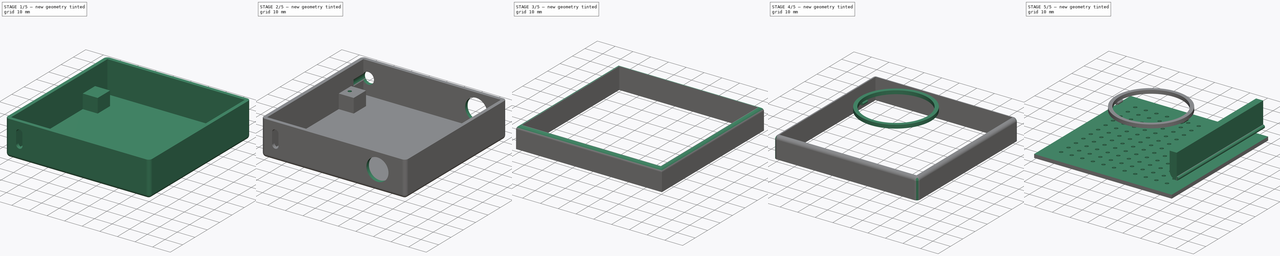
[diagram: build sequence overview — one tinted view per stage of 5, left to right]
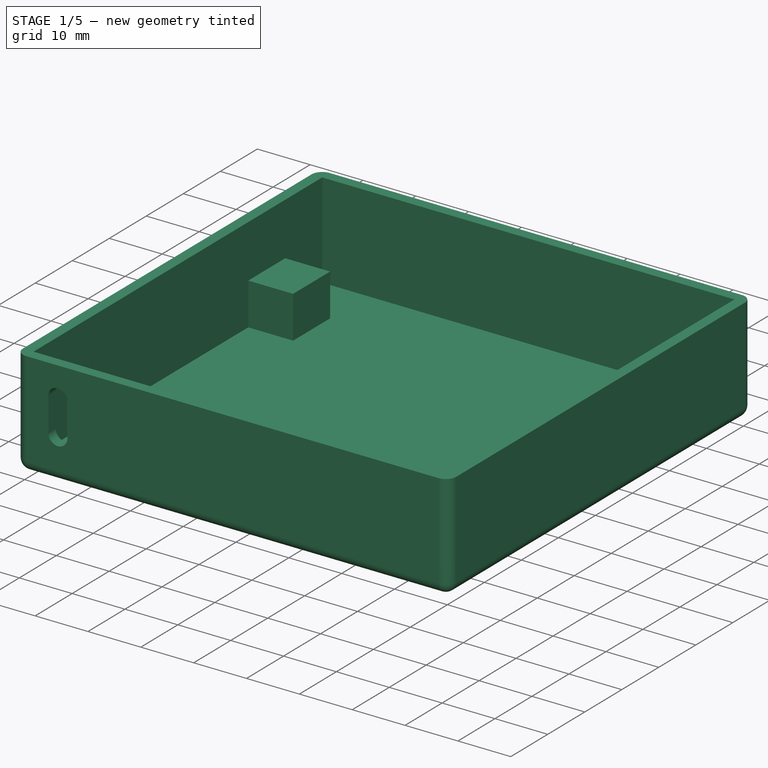
[diagram: stage 1 of 5 — iso view after this stage's code; geometry added in this stage tinted green]
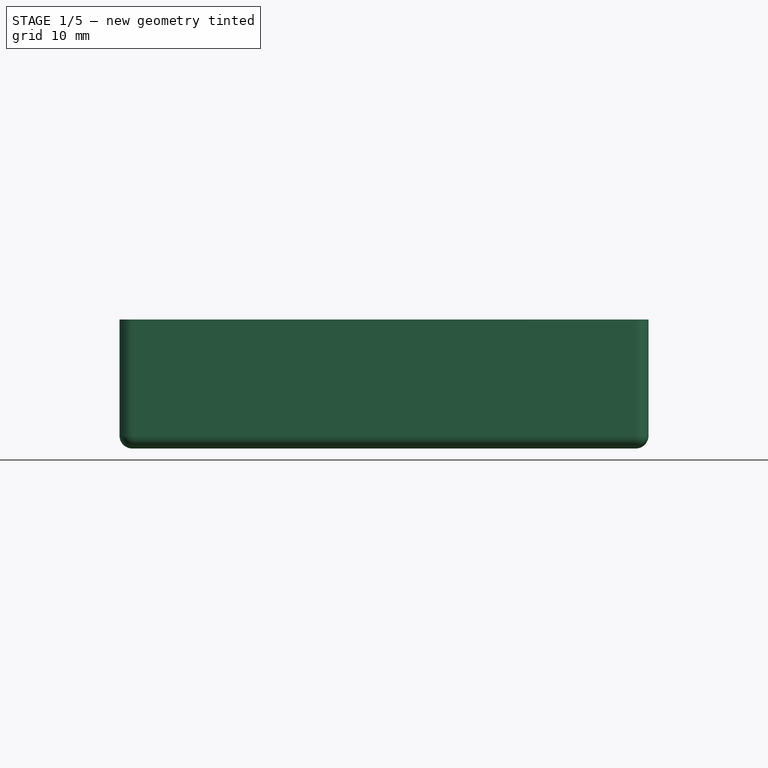
[diagram: stage 1 of 5 — front view after this stage's code; geometry added in this stage tinted green]
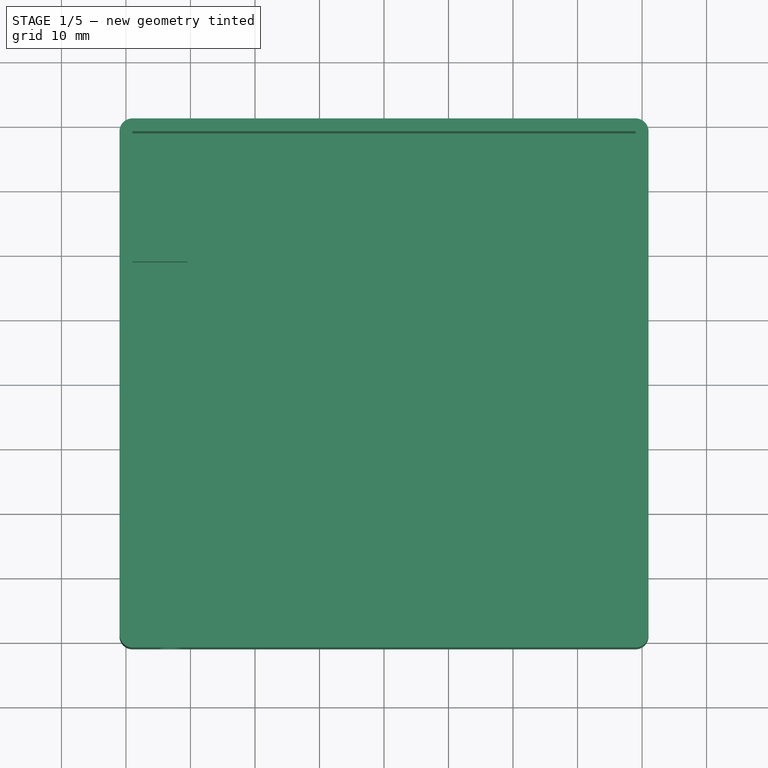
[diagram: stage 1 of 5 — top view after this stage's code; geometry added in this stage tinted green]
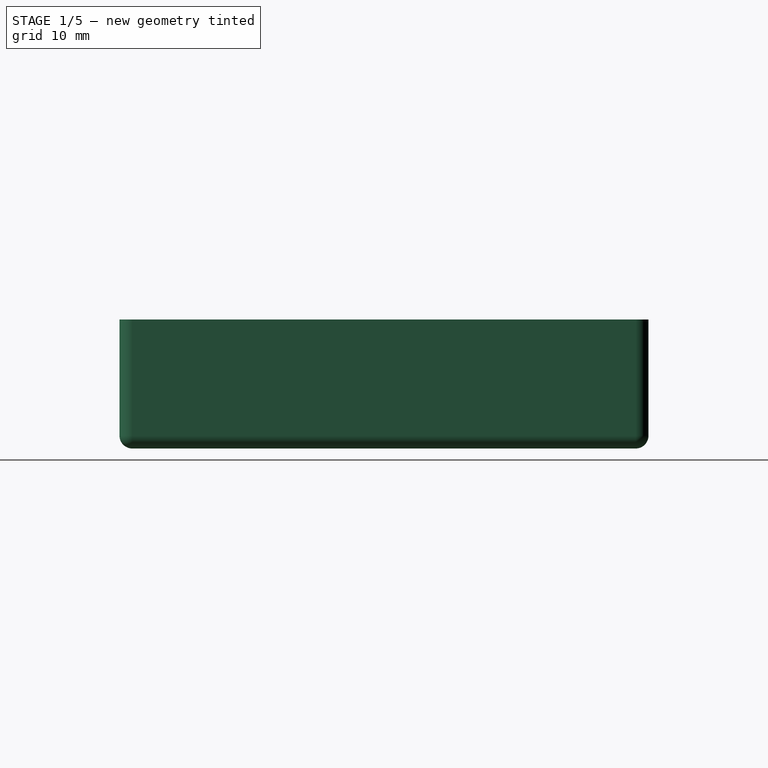
[diagram: stage 1 of 5 — right view after this stage's code; geometry added in this stage tinted green]
FCSTD DOCUMENT  (FreeCAD 0.21R33668 +26 (Git))
Label: P014 FM Radio ala Rams
License: All rights reserved
LicenseURL: http://en.wikipedia.org/wiki/All_rights_reserved
objects: Sketcher::SketchObject×13, PartDesign::Pad×8, PartDesign::SubShapeBinder×8, PartDesign::Body×7, PartDesign::Pocket×5, PartDesign::Mirrored×2, PartDesign::Fillet×2, App::Part×2, PartDesign::Thickness×1
note: 62 computed .brp shape members not serialized (recipe doc carries the construction recipe); baked Part::Feature solids carry a one-line shape summary decoded from their .brp

FEATURE [Sketcher::SketchObject] Sketch
  FullyConstrained = true
  MapMode = 5
  Support = -> [XY_Plane]
  sketch-geometry (4):
    g0: LineSegment StartX=-39 StartY=39 StartZ=0 EndX=39 EndY=39 EndZ=0
    g1: LineSegment StartX=39 StartY=39 StartZ=0 EndX=39 EndY=-39 EndZ=0
    g2: LineSegment StartX=39 StartY=-39 StartZ=0 EndX=-39 EndY=-39 EndZ=0
    g3: LineSegment StartX=-39 StartY=-39 StartZ=0 EndX=-39 EndY=39 EndZ=0
  constraints (11):
    c: Coincident(g0,g1)
    c: Coincident(g1,g2)
    c: Coincident(g2,g3)
    c: Coincident(g3,g0)
    c: Horizontal(g0)
    c: Vertical(g3)
    c: Symmetric(g2,g0,g-1)
    c: DistanceY(g3,g3) = 78
    c: Equal(g0,g1)
    c: Equal(g1,g2)
    c: Equal(g2,g3)
FEATURE [PartDesign::Pad] Pad
  Direction = (0,0,1)
  Length = 18
  Length2 = 10
  Profile = -> Sketch
  ReferenceAxis = -> Sketch [N_Axis]
  Type = 0
FEATURE [PartDesign::Thickness] Thickness
  Base = -> Pad [Face6]
  BaseFeature = -> Pad
  Intersection = false
  Join = 0
  Mode = 0
  SupportTransform = false
  Value = 2
FEATURE [Sketcher::SketchObject] Sketch001  label="Sketch001 USBC"
  ExternalGeometry = -> [Thickness]
  FullyConstrained = true
  MapMode = 5
  Placement = pos=(0,0,0) rot=(1,0,0;1.5708rad)
  Support = -> [XZ_Plane]
  sketch-geometry (4):
    g0: ArcOfCircle CenterX=-33 CenterY=12.3 CenterZ=0 NormalX=0 NormalY=0 NormalZ=1 AngleXU=0 Radius=1.8 StartAngle=4e-16 EndAngle=3.14159
    g1: ArcOfCircle CenterX=-33 CenterY=6 CenterZ=0 NormalX=0 NormalY=0 NormalZ=1 AngleXU=0 Radius=1.8 StartAngle=3.14159 EndAngle=6.28319
    g2: LineSegment StartX=-34.8 StartY=12.3 StartZ=0 EndX=-34.8 EndY=6 EndZ=0
    g3: LineSegment StartX=-31.2 StartY=6 StartZ=0 EndX=-31.2 EndY=12.3 EndZ=0
  constraints (10):
    c: Tangent(g0,g2) = -1.5708
    c: Tangent(g2,g1) = -1.5708
    c: Tangent(g1,g3) = -1.5708
    c: Tangent(g3,g0) = -1.5708
    c: Equal(g0,g1)
    c: Vertical(g3)
    c: Radius(g0) = 1.8
    c: Distance(g2) = 6.3
    c: Distance(g1,g-4) = 6
    c: Distance(g1,g-3) = 6
FEATURE [PartDesign::Pocket] Pocket
  BaseFeature = -> Thickness
  Direction = (0,1,-2e-16)
  Length = 50
  Length2 = 5
  Profile = -> Sketch001
  ReferenceAxis = -> Sketch001 [N_Axis]
  Reversed = true
  Type = 0
FEATURE [PartDesign::SubShapeBinder] Binder
  BindCopyOnChange = 0
  BindMode = 0
  ClaimChildren = false
  Context = -> Part001 [Body.Binder.]
  Fuse = false
  MakeFace = false
  OffsetFill = false
  OffsetIntersection = false
  OffsetJoinType = 0
  OffsetOpenResult = false
  PartialLoad = false
  Relative = true
  Support = -> [Pocket[Face4]]
  _Version = 2
FEATURE [Sketcher::SketchObject] Sketch003
  ExternalGeometry = -> [Pocket]
  FullyConstrained = true
  MapMode = 5
  Support = -> [Pocket]
  sketch-geometry (4):
    g0: LineSegment StartX=-39 StartY=29 StartZ=0 EndX=-30.5 EndY=29 EndZ=0
    g1: LineSegment StartX=-30.5 StartY=29 StartZ=0 EndX=-30.5 EndY=19 EndZ=0
    g2: LineSegment StartX=-30.5 StartY=19 StartZ=0 EndX=-39 EndY=19 EndZ=0
    g3: LineSegment StartX=-39 StartY=19 StartZ=0 EndX=-39 EndY=29 EndZ=0
  constraints (12):
    c: Coincident(g0,g1)
    c: Coincident(g1,g2)
    c: Coincident(g2,g3)
    c: Coincident(g3,g0)
    c: Horizontal(g0)
    c: Horizontal(g2)
    c: Vertical(g1)
    c: Vertical(g3)
    c: PointOnObject(g0,g-4)
    c: DistanceY(g1,g1) = 10
    c: DistanceX(g2,g2) = 8.5
    c: Distance(g0,g-3) = 10
FEATURE [PartDesign::Pad] Pad001  label="Pad001 Antenna Mount"
  BaseFeature = -> Pocket
  Direction = (0,0,1)
  Length = 8
  Length2 = 10
  Profile = -> Sketch003
  ReferenceAxis = -> Sketch003 [N_Axis]
  Type = 0
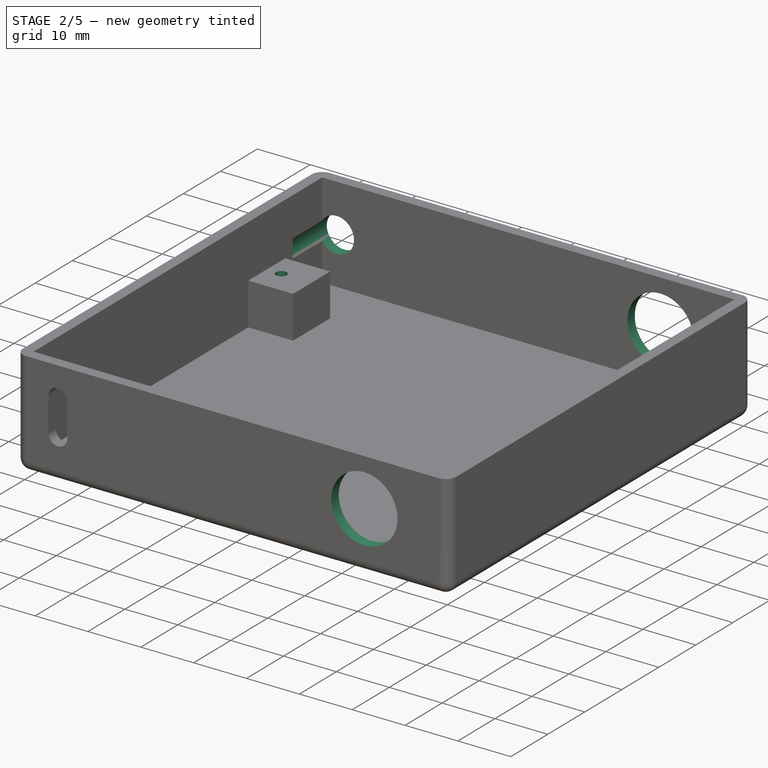
[diagram: stage 2 of 5 — iso view after this stage's code; geometry added in this stage tinted green]
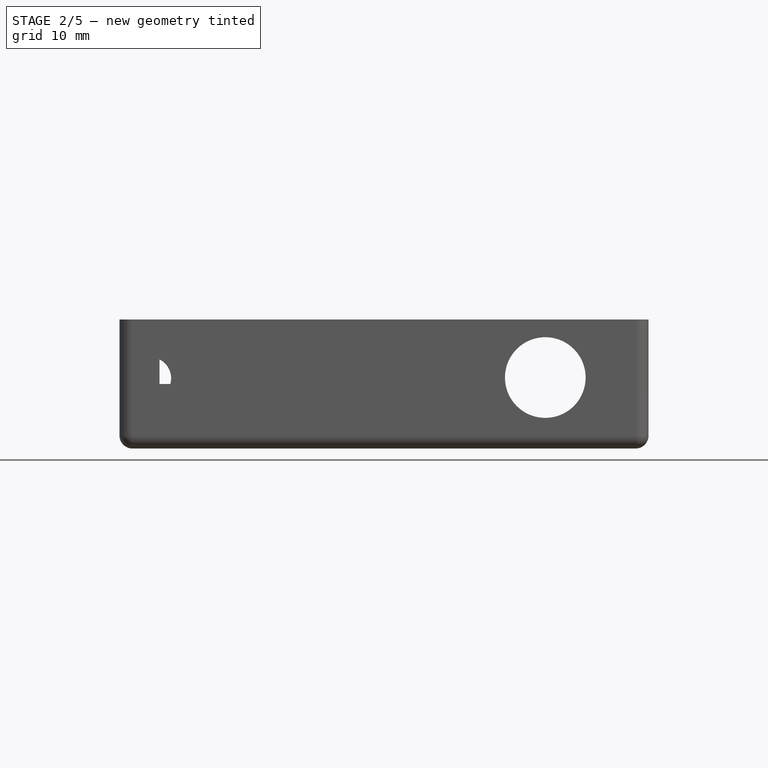
[diagram: stage 2 of 5 — front view after this stage's code; geometry added in this stage tinted green]
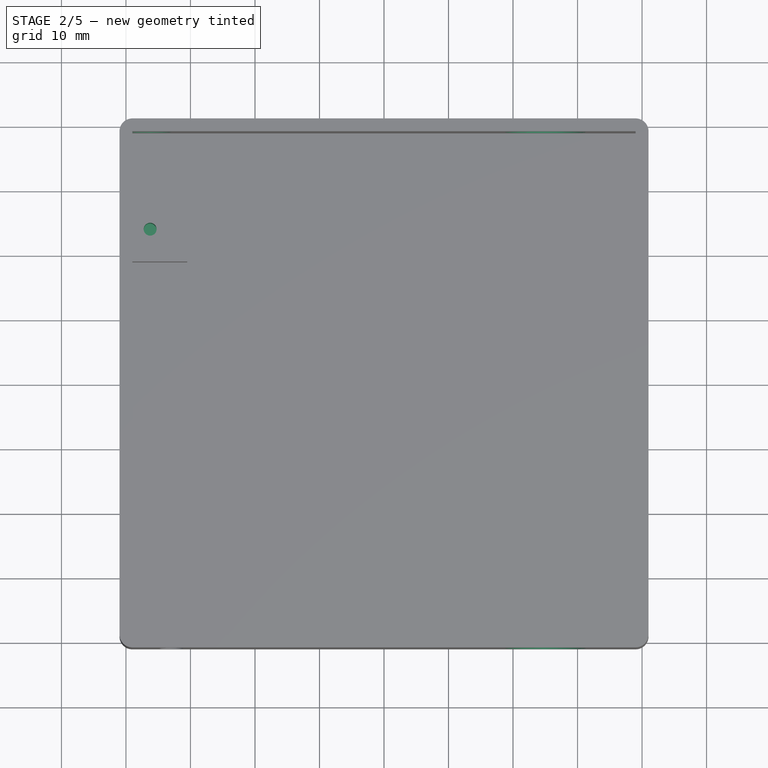
[diagram: stage 2 of 5 — top view after this stage's code; geometry added in this stage tinted green]
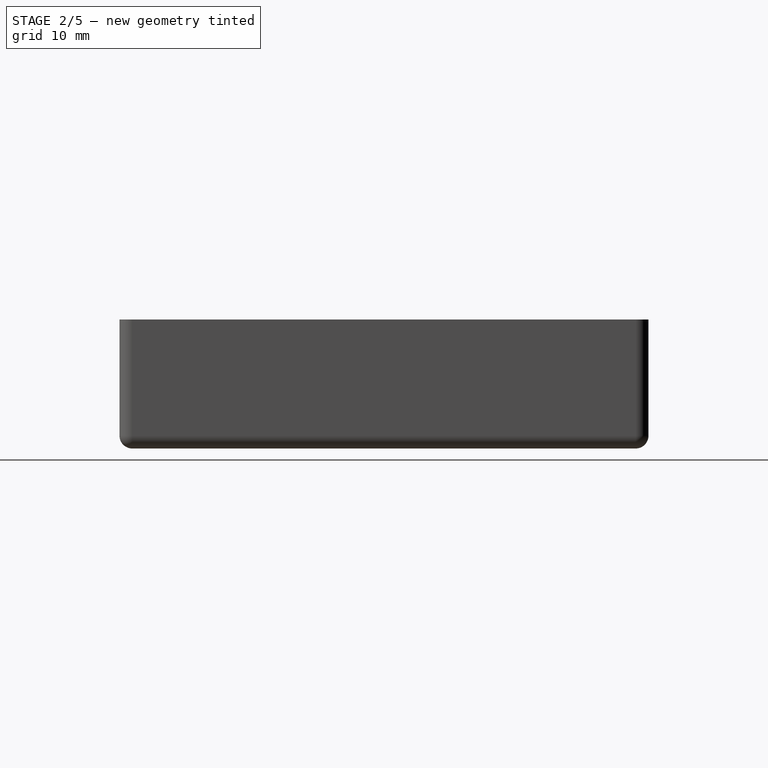
[diagram: stage 2 of 5 — right view after this stage's code; geometry added in this stage tinted green]
FEATURE [PartDesign::SubShapeBinder] Binder001
  BindCopyOnChange = 0
  BindMode = 0
  ClaimChildren = false
  Context = -> Part001 [Body.Binder001.]
  Fuse = false
  MakeFace = false
  OffsetFill = false
  OffsetIntersection = false
  OffsetJoinType = 0
  OffsetOpenResult = false
  PartialLoad = false
  Relative = true
  Support = -> [Pad001[Face7]]
  _Version = 2
FEATURE [Sketcher::SketchObject] Sketch005  label="Sketch005 Antenna Screw Hole"
  ExternalGeometry = -> [Pad001]
  FullyConstrained = true
  MapMode = 5
  Support = -> [XY_Plane]
  sketch-geometry (1):
    g0: Circle CenterX=-36.25 CenterY=24 CenterZ=0 NormalX=0 NormalY=0 NormalZ=1 AngleXU=0 Radius=1
  constraints (3):
    c: Diameter(g0) = 2
    c: Distance(g0,g-3) = 5
    c: Distance(g0,g-6) = 2.75
FEATURE [PartDesign::Pocket] Pocket001
  BaseFeature = -> Pad001
  Direction = (0,0,-1)
  Length = 20
  Length2 = 5
  Profile = -> Sketch005
  ReferenceAxis = -> Sketch005 [N_Axis]
  Reversed = true
  Type = 0
FEATURE [Sketcher::SketchObject] Sketch006  label="Antenna Hole"
  FullyConstrained = true
  MapMode = 5
  Placement = pos=(0,0,0) rot=(1,0,0;1.5708rad)
  Support = -> [XZ_Plane001]
  sketch-geometry (1):
    g0: Circle CenterX=-36.25 CenterY=8.9 CenterZ=0 NormalX=0 NormalY=0 NormalZ=1 AngleXU=0 Radius=3.25
  constraints (3):
    c: Diameter(g0) = 6.5
    c: DistanceY(g-1,g0) = 8.9
    c: DistanceX(g-2,g0) = -36.25
FEATURE [PartDesign::Body] Body001  label="Body001 Antenna Hole"
  Group = -> [Sketch006]
  Origin = -> Origin001
  Placement = pos=(0,31,0) rot=(0,0,1;0rad)
FEATURE [PartDesign::SubShapeBinder] Binder002
  BindCopyOnChange = 0
  BindMode = 0
  ClaimChildren = false
  Context = -> Part001 [Body.Binder002.]
  Fuse = false
  MakeFace = true
  OffsetFill = false
  OffsetIntersection = false
  OffsetJoinType = 0
  OffsetOpenResult = false
  PartialLoad = false
  Relative = true
  Support = -> [Body001[Sketch006.]]
  _Version = 2
FEATURE [PartDesign::Pocket] Pocket002  label="Pocket002 Antenna Hole"
  BaseFeature = -> Pocket001
  Direction = (-4e-16,-1,-6e-16)
  Length = 20
  Length2 = 5
  Profile = -> Binder002
  Reversed = true
  Type = 0
FEATURE [PartDesign::Body] Body007  label="Body007 Speaker holder"
  Group = -> [Sketch015,Pad006,Sketch016,Pad007,Mirrored001]
  Origin = -> Origin009
  Placement = pos=(0,0,6) rot=(0,0,1;0rad)
  Tip = -> Mirrored001
FEATURE [Sketcher::SketchObject] Sketch007
  ExternalGeometry = -> [Pocket002]
  FullyConstrained = true
  MapMode = 5
  Placement = pos=(0,0,0) rot=(1,0,0;1.5708rad)
  Support = -> [XZ_Plane]
  sketch-geometry (1):
    g0: Circle CenterX=25 CenterY=9 CenterZ=0 NormalX=0 NormalY=0 NormalZ=1 AngleXU=0 Radius=6.25
  constraints (3):
    c: Diameter(g0) = 12.5
    c: DistanceY(g-1,g0) = 9
    c: DistanceX(g-2,g0) = 25
FEATURE [PartDesign::Pocket] Pocket003
  BaseFeature = -> Pocket002
  Direction = (0,1,2e-16)
  Length = 50
  Length2 = 50
  Profile = -> Sketch007
  ReferenceAxis = -> Sketch007 [N_Axis]
  Type = 4
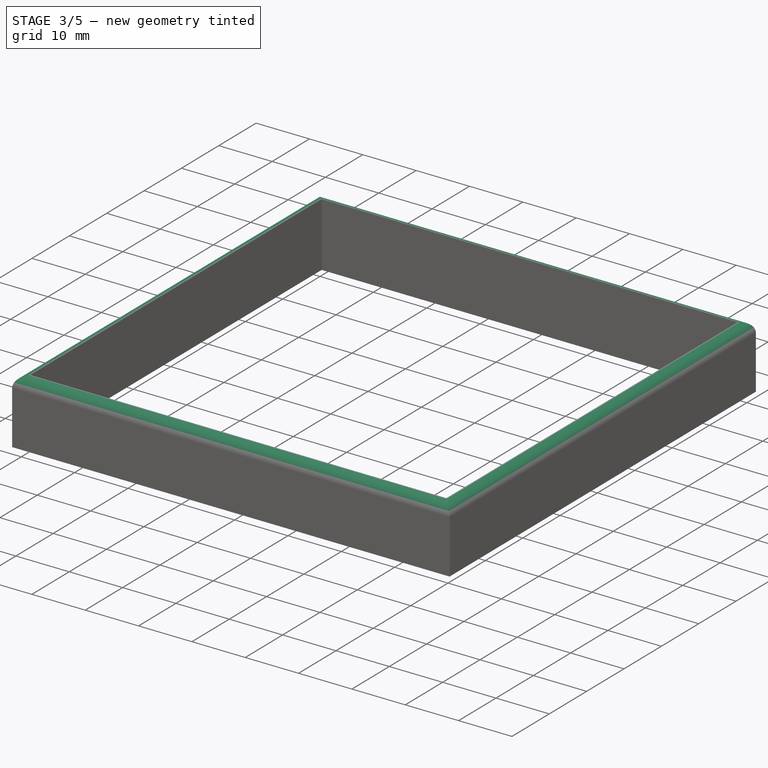
[diagram: stage 3 of 5 — iso view after this stage's code; geometry added in this stage tinted green]
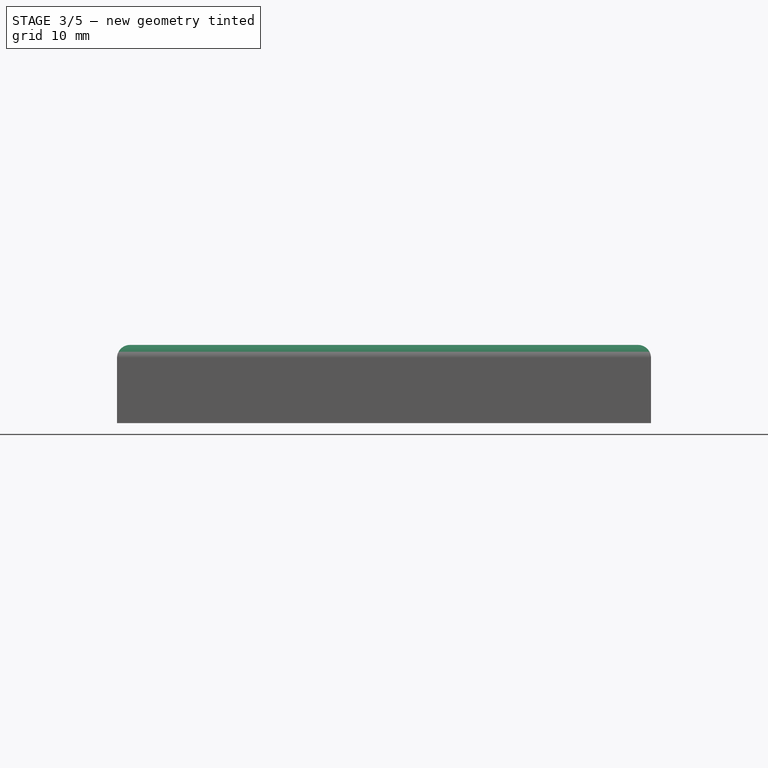
[diagram: stage 3 of 5 — front view after this stage's code; geometry added in this stage tinted green]
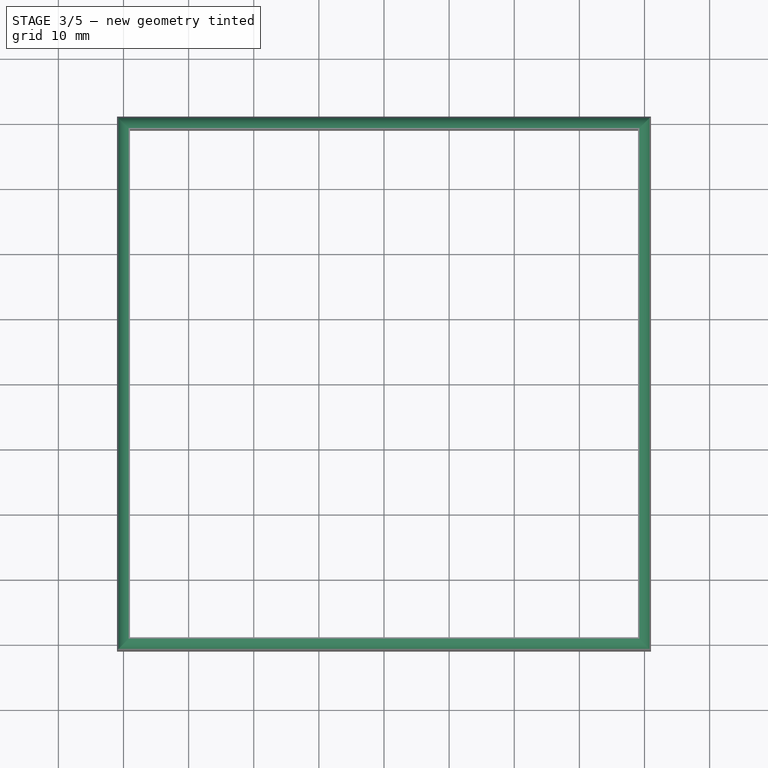
[diagram: stage 3 of 5 — top view after this stage's code; geometry added in this stage tinted green]
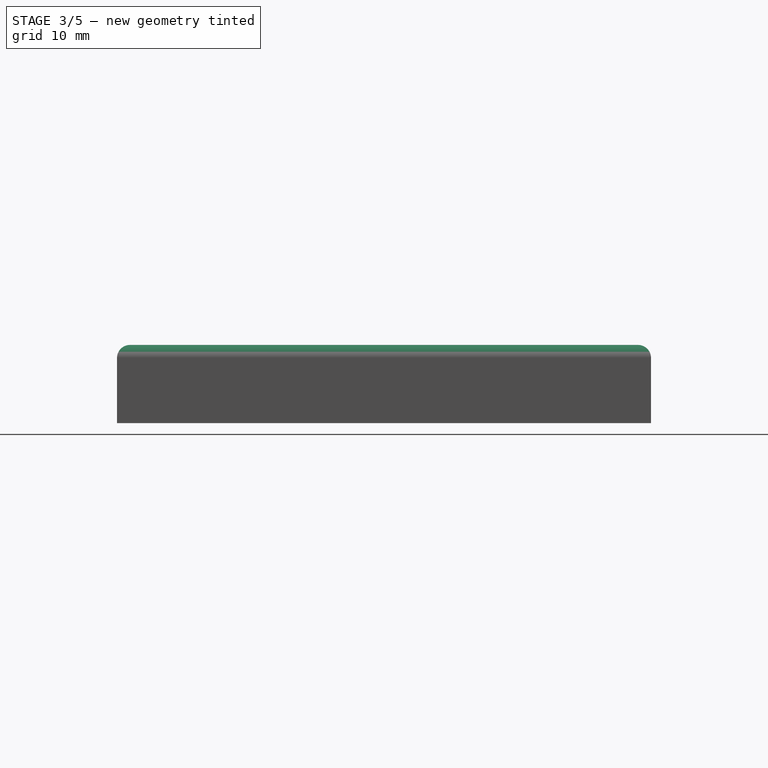
[diagram: stage 3 of 5 — right view after this stage's code; geometry added in this stage tinted green]
FEATURE [Sketcher::SketchObject] Sketch011
  ExternalGeometry = -> [Pocket003]
  FullyConstrained = true
  MapMode = 5
  Placement = pos=(0,0,0) rot=(1,0,0;1.5708rad)
  Support = -> [XZ_Plane]
  sketch-geometry (3):
    g0: LineSegment StartX=-39 StartY=16 StartZ=0 EndX=-39 EndY=13.5 EndZ=0
    g1: ArcOfCircle CenterX=-39 CenterY=14.75 CenterZ=0 NormalX=0 NormalY=0 NormalZ=1 AngleXU=0 Radius=1.25 StartAngle=1.5708 EndAngle=4.71239
    g2: LineSegment StartX=-39 StartY=0 StartZ=0 EndX=-39 EndY=18 EndZ=0
  constraints (10):
    c: Vertical(g0)
    c: Perpendicular(g0,g1) = 1.5708
    c: Coincident(g1,g0)
    c: Radius(g1) = 1.25
    c: PointOnObject(g2,g-1)
    c: Vertical(g2)
    c: DistanceY(g0,g2) = 2
    c: DistanceY(g-1,g2) = 18
    c: DistanceX(g-2,g2) = -39
    c: PointOnObject(g0,g2)
FEATURE [PartDesign::Pocket] Pocket004  label="Pocket004 Inner Holder"
  BaseFeature = -> Pocket003
  Direction = (0,1,2e-16)
  Length = 36
  Length2 = 36
  Profile = -> Sketch011
  ReferenceAxis = -> Sketch011 [N_Axis]
  Type = 4
FEATURE [Sketcher::SketchObject] Sketch017
  ExternalGeometry = -> [Binder004]
  FullyConstrained = true
  MapMode = 5
  Support = -> [XY_Plane002]
  sketch-geometry (9):
    g0: LineSegment StartX=39 StartY=39 StartZ=0 EndX=-39 EndY=39 EndZ=0
    g1: LineSegment StartX=-39 StartY=39 StartZ=0 EndX=-39 EndY=-39 EndZ=0
    g2: LineSegment StartX=-39 StartY=-39 StartZ=0 EndX=39 EndY=-39 EndZ=0
    g3: LineSegment StartX=39 StartY=-39 StartZ=0 EndX=39 EndY=39 EndZ=0
    g4: LineSegment StartX=39 StartY=-39 StartZ=0 EndX=-39 EndY=39 EndZ=0
    g5: LineSegment StartX=-41 StartY=41 StartZ=0 EndX=41 EndY=41 EndZ=0
    g6: LineSegment StartX=41 StartY=41 StartZ=0 EndX=41 EndY=-41 EndZ=0
    g7: LineSegment StartX=41 StartY=-41 StartZ=0 EndX=-41 EndY=-41 EndZ=0
    g8: LineSegment StartX=-41 StartY=-41 StartZ=0 EndX=-41 EndY=41 EndZ=0
  constraints (24):
    c: Coincident(g0,g1)
    c: Coincident(g1,g2)
    c: Coincident(g2,g3)
    c: Coincident(g3,g0)
    c: Horizontal(g0)
    c: Horizontal(g2)
    c: Vertical(g1)
    c: Vertical(g3)
    c: Coincident(g0,g-3)
    c: PointOnObject(g-4,g2)
    c: Coincident(g4,g2)
    c: PointOnObject(g-1,g4)
    c: Coincident(g4,g0)
    c: Coincident(g5,g6)
    c: Coincident(g6,g7)
    c: Coincident(g7,g8)
    c: Coincident(g8,g5)
    c: Horizontal(g5)
    c: Horizontal(g7)
    c: Vertical(g6)
    c: Vertical(g8)
    c: Symmetric(g6,g5,g-1)
    c: Distance(g0,g5) = 2
    c: Distance(g0,g8) = 2
FEATURE [PartDesign::Pad] Pad008
  Direction = (0,0,1)
  Length = 12
  Length2 = 10
  Profile = -> Sketch017
  ReferenceAxis = -> Sketch017 [N_Axis]
  Type = 0
FEATURE [PartDesign::Fillet] Fillet
  Base = -> Pad008 [Edge7,Edge10,Edge12,Edge4]
  BaseFeature = -> Pad008
  Radius = 1.99
  SupportTransform = false
  UseAllEdges = false
FEATURE [PartDesign::Body] Body002  label="Body Top"
  Group = -> [Binder004,Sketch017,Pad008,Fillet,Fillet001]
  Origin = -> Origin002
  Placement = pos=(0,0,18) rot=(0,0,1;0rad)
  Tip = -> Fillet001
FEATURE [App::Part] Part  label="Top"
  Group = -> [Body002,Body003,Body004,Body006,Body007]
  Origin = -> Origin005
FEATURE [PartDesign::Mirrored] Mirrored
  BaseFeature = -> Pocket004
  MirrorPlane = -> Sketch011 [V_Axis]
  Originals = -> [Pocket004]
FEATURE [PartDesign::Body] Body  label="Body Bottom"
  Group = -> [Sketch,Pad,Thickness,Sketch001,Pocket,Binder,Sketch003,Pad001,Binder001,Sketch005,Pocket001,Binder002,Pocket002,Binder003,Sketch007,Pocket003,Sketch011,Pocket004,Mirrored]
  Origin = -> Origin
  Tip = -> Mirrored
FEATURE [App::Part] Part001  label="Bottom"
  Group = -> [Body001,Body]
  Origin = -> Origin006
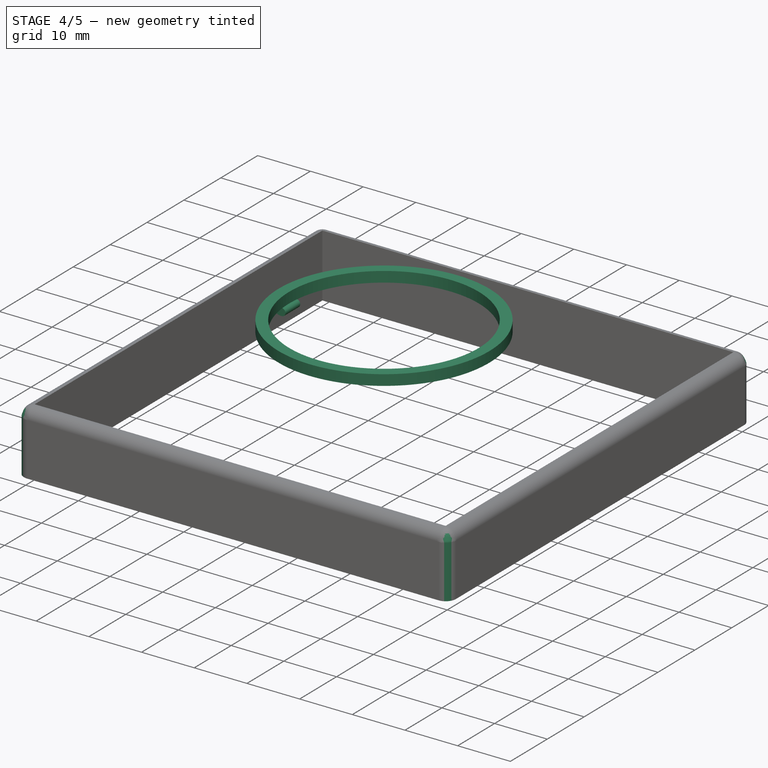
[diagram: stage 4 of 5 — iso view after this stage's code; geometry added in this stage tinted green]
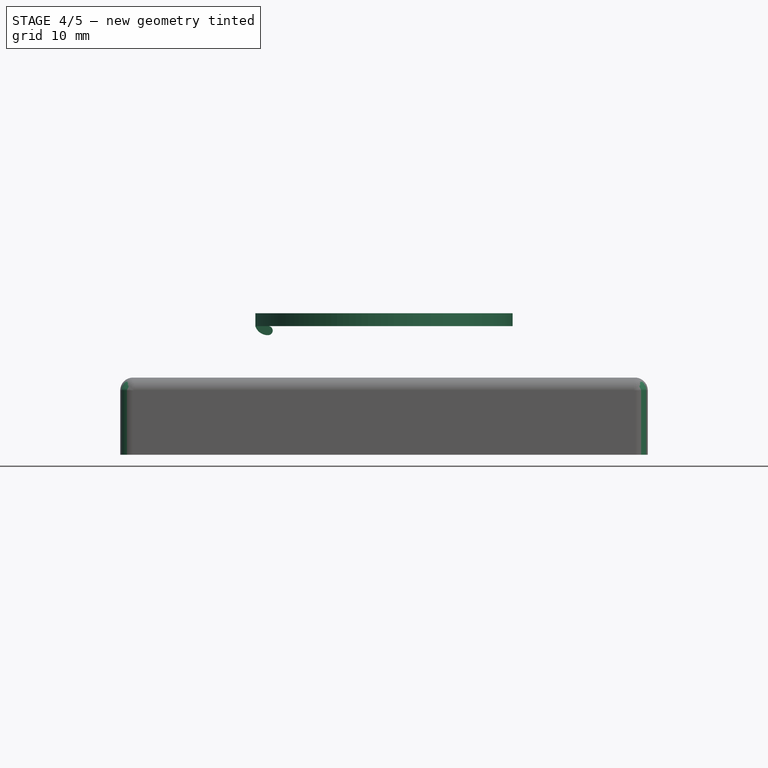
[diagram: stage 4 of 5 — front view after this stage's code; geometry added in this stage tinted green]
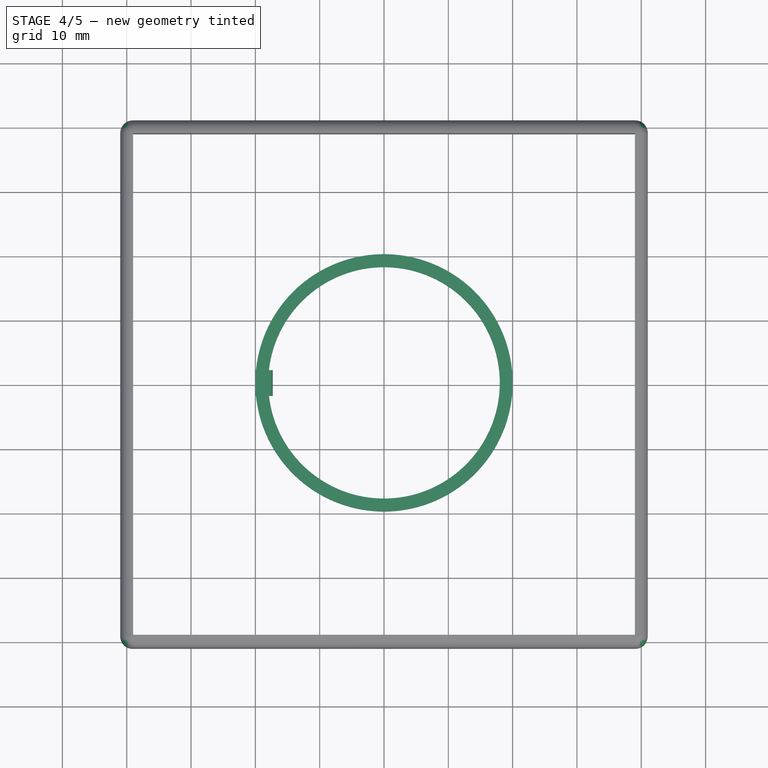
[diagram: stage 4 of 5 — top view after this stage's code; geometry added in this stage tinted green]
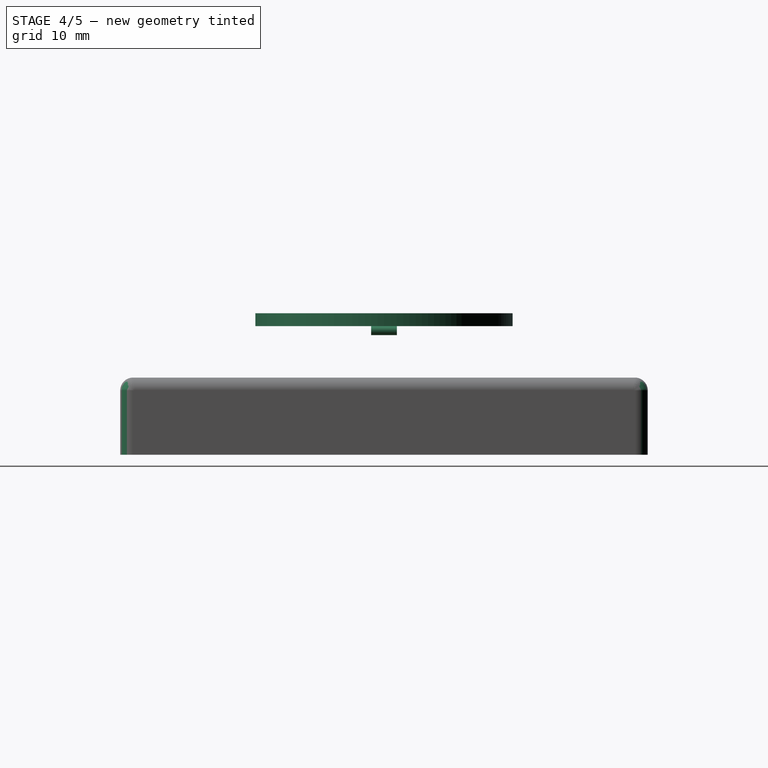
[diagram: stage 4 of 5 — right view after this stage's code; geometry added in this stage tinted green]
FEATURE [PartDesign::Body] Body006  label="Body Top Holes"
  Group = -> [Binder007,Sketch013,Pad005]
  Origin = -> Origin008
  Placement = pos=(0,0,28) rot=(0,0,1;0rad)
  Tip = -> Pad005
FEATURE [Sketcher::SketchObject] Sketch015
  FullyConstrained = true
  MapMode = 5
  Support = -> [XY_Plane009]
  sketch-geometry (2):
    g0: Circle CenterX=0 CenterY=0 CenterZ=0 NormalX=0 NormalY=0 NormalZ=1 AngleXU=0 Radius=18
    g1: Circle CenterX=0 CenterY=0 CenterZ=0 NormalX=0 NormalY=0 NormalZ=1 AngleXU=0 Radius=20
  constraints (5):
    c: PointOnObject(g0,g-1)
    c: Diameter(g0) = 36
    c: PointOnObject(g0,g-2)
    c: Coincident(g1,g0)
    c: Diameter(g1) = 40
FEATURE [PartDesign::Pad] Pad006
  Direction = (0,0,1)
  Length = 22
  Length2 = -20
  Profile = -> Sketch015
  ReferenceAxis = -> Sketch015 [N_Axis]
  Type = 4
FEATURE [Sketcher::SketchObject] Sketch016
  FullyConstrained = true
  MapMode = 5
  Placement = pos=(0,0,0) rot=(1,0,0;1.5708rad)
  Support = -> [XZ_Plane009]
  sketch-geometry (3):
    g0: LineSegment StartX=-20 StartY=20 StartZ=0 EndX=-18 EndY=20 EndZ=0
    g1: ArcOfCircle CenterX=-18 CenterY=19.3 CenterZ=0 NormalX=0 NormalY=0 NormalZ=1 AngleXU=0 Radius=0.7 StartAngle=4.78254 EndAngle=7.85398
    g2: ArcOfCircle CenterX=-18.0911 CenterY=20.5968 CenterZ=0 NormalX=0 NormalY=0 NormalZ=1 AngleXU=0 Radius=2 StartAngle=3.44461 EndAngle=4.78254
  constraints (9):
    c: Horizontal(g0)
    c: DistanceX(g0,g0) = 2
    c: Distance(g-1,g0) = 20
    c: DistanceX(g-2,g0) = -18
    c: Tangent(g0,g1) = 1.5708
    c: Tangent(g1,g2) = -1.5708
    c: Coincident(g2,g0)
    c: Radius(g1) = 0.7
    c: Radius(g2) = 2
FEATURE [PartDesign::Pad] Pad007
  BaseFeature = -> Pad006
  Direction = (0,-1,-2e-16)
  Length = 2
  Length2 = 2
  Profile = -> Sketch016
  ReferenceAxis = -> Sketch016 [N_Axis]
  Type = 4
FEATURE [PartDesign::Fillet] Fillet001
  Base = -> Fillet [Edge4,Edge1,Edge18,Edge5]
  BaseFeature = -> Fillet
  Radius = 1.95
  SupportTransform = false
  UseAllEdges = false
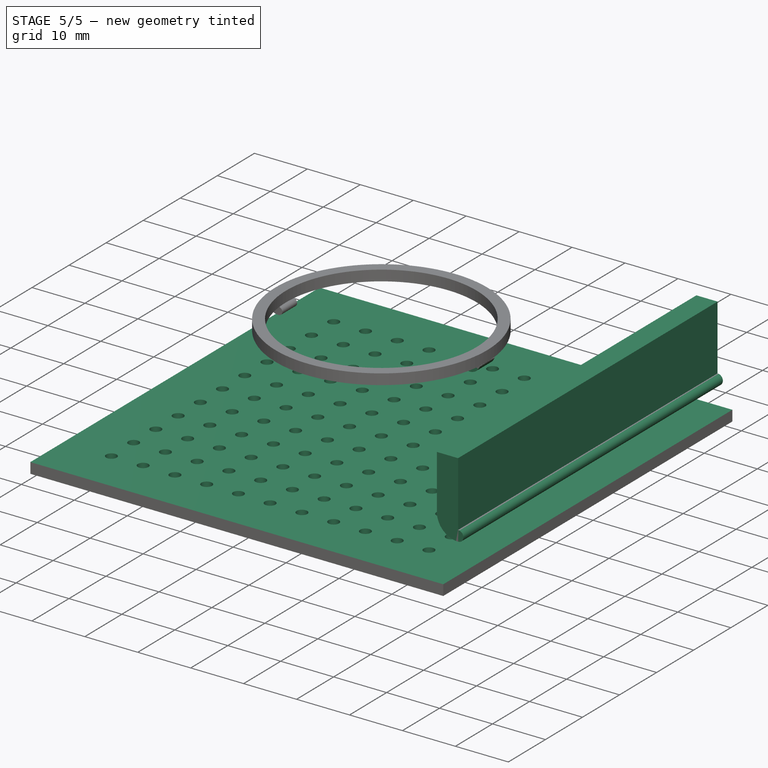
[diagram: stage 5 of 5 — iso view after this stage's code; geometry added in this stage tinted green]
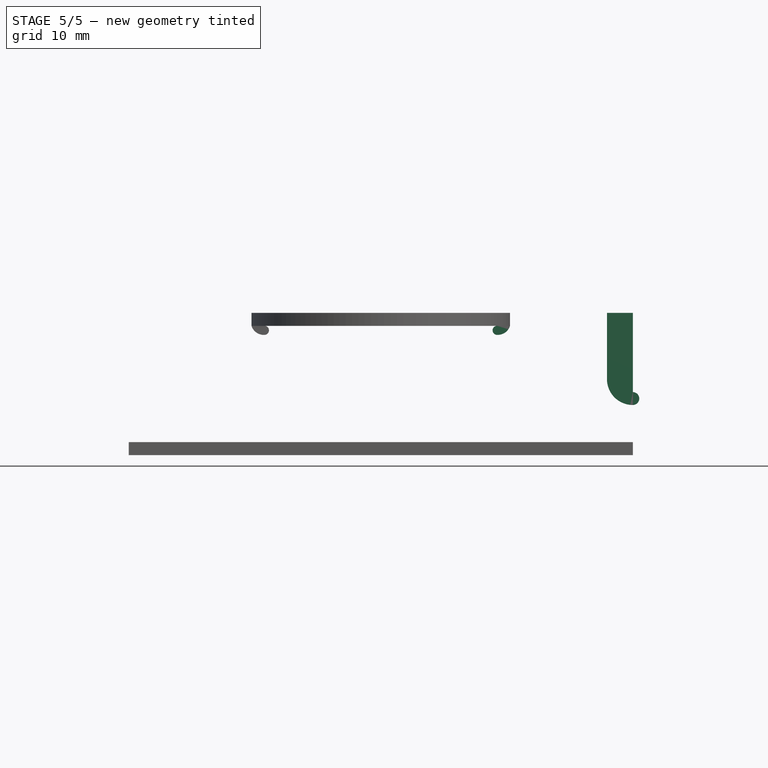
[diagram: stage 5 of 5 — front view after this stage's code; geometry added in this stage tinted green]
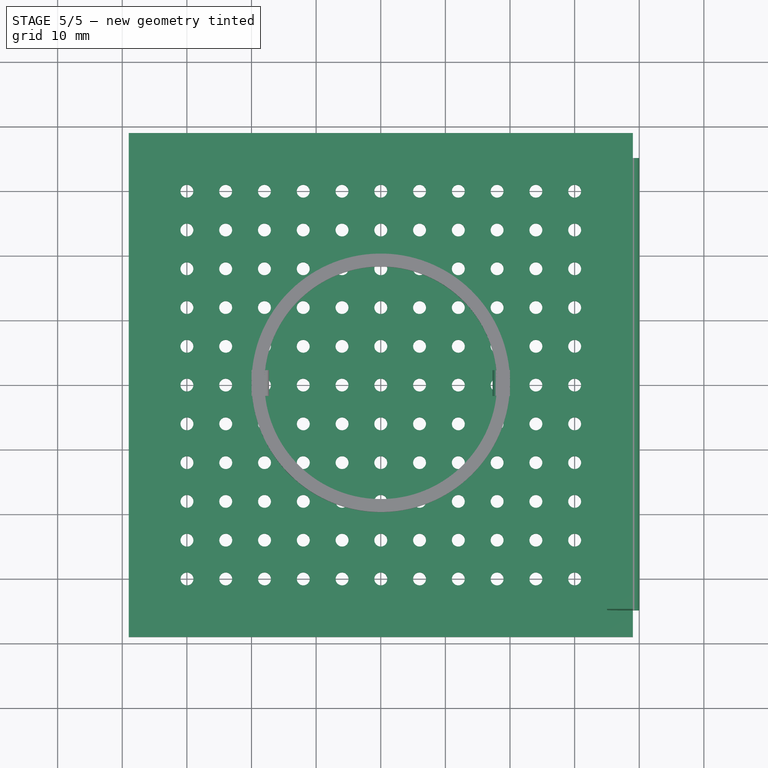
[diagram: stage 5 of 5 — top view after this stage's code; geometry added in this stage tinted green]
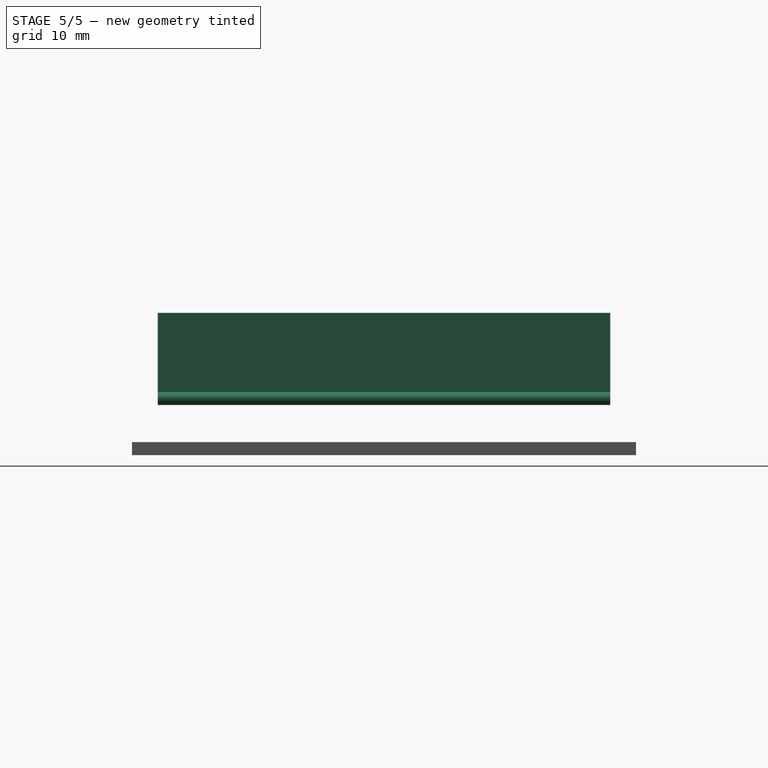
[diagram: stage 5 of 5 — right view after this stage's code; geometry added in this stage tinted green]
FEATURE [PartDesign::SubShapeBinder] Binder003
  BindCopyOnChange = 0
  BindMode = 0
  ClaimChildren = false
  Context = -> Part001 [Body.Binder003.]
  Fuse = false
  MakeFace = false
  OffsetFill = false
  OffsetIntersection = false
  OffsetJoinType = 0
  OffsetOpenResult = false
  PartialLoad = false
  Relative = true
  Support = -> [Pocket002[Face1]]
  _Version = 2
FEATURE [PartDesign::SubShapeBinder] Binder004
  BindCopyOnChange = 0
  BindMode = 0
  ClaimChildren = false
  Context = -> Part [Body002.Binder004.]
  Fuse = false
  MakeFace = false
  OffsetFill = false
  OffsetIntersection = false
  OffsetJoinType = 0
  OffsetOpenResult = false
  PartialLoad = false
  Relative = true
  Support = -> [Body[Pocket003.Face4]]
  _Version = 2
FEATURE [PartDesign::SubShapeBinder] Binder005
  BindCopyOnChange = 0
  BindMode = 0
  ClaimChildren = false
  Context = -> Part [Body003.Binder005.]
  Fuse = false
  MakeFace = false
  OffsetFill = false
  OffsetIntersection = false
  OffsetJoinType = 0
  OffsetOpenResult = false
  PartialLoad = false
  Relative = true
  Support = -> [Body002[Thickness001.Face1]]
  _Version = 2
FEATURE [Sketcher::SketchObject] Sketch010  label="Sketch010 Innder Holdern Template"
  ExternalGeometry = -> [Binder005]
  FullyConstrained = true
  MapMode = 5
  Placement = pos=(0,0,0) rot=(1,0,0;1.5708rad)
  Support = -> [XZ_Plane003]
  sketch-geometry (8):
    g0: LineSegment StartX=-35 StartY=28 StartZ=0 EndX=-35 EndY=18 EndZ=0
    g1: LineSegment StartX=-39 StartY=18 StartZ=0 EndX=-39 EndY=28 EndZ=0
    g2: ArcOfCircle CenterX=-38.7611 CenterY=14.75 CenterZ=0 NormalX=0 NormalY=0 NormalZ=1 AngleXU=0 Radius=1.02814 StartAngle=1.80528 EndAngle=4.4779
    g3: LineSegment StartX=-39 StartY=15.75 StartZ=0 EndX=-39 EndY=18 EndZ=0
    g4: ArcOfCircle CenterX=-38.1918 CenterY=17.1335 CenterZ=0 NormalX=0 NormalY=0 NormalZ=1 AngleXU=0 Radius=3.4787 StartAngle=4.4779 EndAngle=5.87417
    g5: LineSegment StartX=-35 StartY=18 StartZ=0 EndX=-35 EndY=15.75 EndZ=0
    g6: LineSegment StartX=-39 StartY=15.75 StartZ=0 EndX=-39 EndY=13.75 EndZ=0
    g7: LineSegment StartX=-39 StartY=28 StartZ=0 EndX=-35 EndY=28 EndZ=0
  constraints (24):
    c: Vertical(g0)
    c: Vertical(g1)
    c: PointOnObject(g0,g-5)
    c: DistanceX(g1,g0) = 4
    c: PointOnObject(g1,g-5)
    c: Coincident(g3,g1)
    c: Vertical(g3)
    c: DistanceY(g3,g3) = 2.25
    c: Tangent(g2,g4) = -1.5708
    c: Coincident(g0,g5)
    c: Coincident(g5,g4)
    c: Vertical(g5)
    c: Coincident(g2,g3)
    c: Coincident(g6,g2)
    c: Coincident(g6,g2)
    c: Vertical(g6)
    c: DistanceY(g6,g6) = 2
    c: Angle(g4) = 1.39626
    c: Equal(g5,g3)
    c: PointOnObject(g-4,g1)
    c: Coincident(g7,g1)
    c: Coincident(g7,g0)
    c: Horizontal(g7)
    c: Distance(g0,g-4) = 6
FEATURE [PartDesign::Pad] Pad003  label="Pad003 Outer Holder"
  Direction = (0,-1,-2e-16)
  Length = 35
  Length2 = 35
  Placement = pos=(0,0,0) rot=(1,0,0;1.5708rad)
  Profile = -> Sketch010
  ReferenceAxis = -> Sketch010 [N_Axis]
  Type = 4
FEATURE [PartDesign::Body] Body003  label="Body Inner Holder 1"
  Group = -> [Binder005,Sketch010,Pad003]
  Origin = -> Origin003
  Tip = -> Pad003
FEATURE [PartDesign::SubShapeBinder] Binder006
  BindCopyOnChange = 0
  BindMode = 0
  ClaimChildren = false
  Context = -> Part [Body004.Binder006.]
  Fuse = false
  MakeFace = false
  OffsetFill = false
  OffsetIntersection = false
  OffsetJoinType = 0
  OffsetOpenResult = false
  PartialLoad = false
  Relative = true
  Support = -> [Body003[Binder005.]]
  _Version = 2
FEATURE [Sketcher::SketchObject] Sketch012
  ExternalGeometry = -> [Binder006]
  FullyConstrained = true
  MapMode = 5
  Placement = pos=(0,0,0) rot=(1,0,0;1.5708rad)
  Support = -> [XZ_Plane004]
  sketch-geometry (5):
    g0: LineSegment StartX=39 StartY=22 StartZ=0 EndX=39 EndY=9.75 EndZ=0
    g1: ArcOfCircle CenterX=39 CenterY=8.75 CenterZ=0 NormalX=0 NormalY=0 NormalZ=1 AngleXU=0 Radius=1 StartAngle=4.71239 EndAngle=7.85398
    g2: ArcOfCircle CenterX=39 CenterY=11.75 CenterZ=0 NormalX=0 NormalY=0 NormalZ=1 AngleXU=0 Radius=4 StartAngle=3.14159 EndAngle=4.71239
    g3: LineSegment StartX=35 StartY=11.75 StartZ=0 EndX=35 EndY=22 EndZ=0
    g4: LineSegment StartX=35 StartY=22 StartZ=0 EndX=39 EndY=22 EndZ=0
  constraints (15):
    c: Vertical(g0)
    c: Perpendicular(g0,g1) = 4.71239
    c: Vertical(g3)
    c: DistanceX(g3,g0) = 4
    c: Angle(g1) = 3.14159
    c: Radius(g1) = 1
    c: Angle(g2) = 1.5708
    c: Coincident(g3,g4)
    c: Horizontal(g4)
    c: Coincident(g1,g2)
    c: Coincident(g0,g4)
    c: PointOnObject(g-3,g0)
    c: DistanceY(g-3,g3) = 6
    c: Tangent(g2,g3) = 1.5708
    c: Distance(g0,g-3) = 2.25
FEATURE [PartDesign::Pad] Pad004
  Direction = (0,-1,-2e-16)
  Length = 35
  Length2 = 35
  Placement = pos=(0,0,0) rot=(1,0,0;1.5708rad)
  Profile = -> Sketch012
  ReferenceAxis = -> Sketch012 [N_Axis]
  Type = 4
FEATURE [PartDesign::Body] Body004  label="Body Inner Holder 2"
  Group = -> [Binder006,Sketch012,Pad004]
  Origin = -> Origin004
  Placement = pos=(0,0,6) rot=(0,0,1;0rad)
  Tip = -> Pad004
FEATURE [PartDesign::SubShapeBinder] Binder007
  BindCopyOnChange = 0
  BindMode = 0
  ClaimChildren = false
  Context = -> Part [Body006.Binder007.]
  Fuse = false
  MakeFace = false
  OffsetFill = false
  OffsetIntersection = false
  OffsetJoinType = 0
  OffsetOpenResult = false
  PartialLoad = false
  Relative = true
  Support = -> [Body002[Thickness001.Face16]]
  _Version = 2
FEATURE [Sketcher::SketchObject] Sketch013
  FullyConstrained = false
  MapMode = 5
  Support = -> [XY_Plane008]
  sketch-geometry (255):
    g0: GeomPoint X=-6 Y=0 Z=0
    g1: Circle CenterX=-30 CenterY=30 CenterZ=0 NormalX=0 NormalY=0 NormalZ=1 AngleXU=0 Radius=1
    g2: LineSegment StartX=-30 StartY=30 StartZ=0 EndX=-24 EndY=30 EndZ=0
    g3: Circle CenterX=-24 CenterY=30 CenterZ=0 NormalX=0 NormalY=0 NormalZ=1 AngleXU=0 Radius=1
    g4: LineSegment StartX=-30 StartY=30 StartZ=0 EndX=-24 EndY=30 EndZ=0
    g5: Circle CenterX=-18 CenterY=30 CenterZ=0 NormalX=0 NormalY=0 NormalZ=1 AngleXU=0 Radius=1
    g6: LineSegment StartX=-24 StartY=30 StartZ=0 EndX=-18 EndY=30 EndZ=0
    g7: Circle CenterX=-12 CenterY=30 CenterZ=0 NormalX=0 NormalY=0 NormalZ=1 AngleXU=0 Radius=1
    g8: LineSegment StartX=-18 StartY=30 StartZ=0 EndX=-12 EndY=30 EndZ=0
    g9: Circle CenterX=-6 CenterY=30 CenterZ=0 NormalX=0 NormalY=0 NormalZ=1 AngleXU=0 Radius=1
    g10: LineSegment StartX=-12 StartY=30 StartZ=0 EndX=-6 EndY=30 EndZ=0
    g11: Circle CenterX=0 CenterY=30 CenterZ=0 NormalX=0 NormalY=0 NormalZ=1 AngleXU=0 Radius=1
    g12: LineSegment StartX=-6 StartY=30 StartZ=0 EndX=0 EndY=30 EndZ=0
    g13: Circle CenterX=-30 CenterY=24 CenterZ=0 NormalX=0 NormalY=0 NormalZ=1 AngleXU=0 Radius=1
    g14: LineSegment StartX=-30 StartY=30 StartZ=0 EndX=-30 EndY=24 EndZ=0
    g15: Circle CenterX=-24 CenterY=24 CenterZ=0 NormalX=0 NormalY=0 NormalZ=1 AngleXU=0 Radius=1
    g16: LineSegment StartX=-30 StartY=24 StartZ=0 EndX=-24 EndY=24 EndZ=0
    g17: Circle CenterX=-18 CenterY=24 CenterZ=0 NormalX=0 NormalY=0 NormalZ=1 AngleXU=0 Radius=1
    g18: LineSegment StartX=-24 StartY=24 StartZ=0 EndX=-18 EndY=24 EndZ=0
    g19: Circle CenterX=-12 CenterY=24 CenterZ=0 NormalX=0 NormalY=0 NormalZ=1 AngleXU=0 Radius=1
    g20: LineSegment StartX=-18 StartY=24 StartZ=0 EndX=-12 EndY=24 EndZ=0
    g21: Circle CenterX=-6 CenterY=24 CenterZ=0 NormalX=0 NormalY=0 NormalZ=1 AngleXU=0 Radius=1
    g22: LineSegment StartX=-12 StartY=24 StartZ=0 EndX=-6 EndY=24 EndZ=0
    g23: LineSegment StartX=-6 StartY=24 StartZ=0 EndX=0 EndY=24 EndZ=0
    g24: Circle CenterX=-30 CenterY=18 CenterZ=0 NormalX=0 NormalY=0 NormalZ=1 AngleXU=0 Radius=1
    g25: LineSegment StartX=-30 StartY=24 StartZ=0 EndX=-30 EndY=18 EndZ=0
    g26: Circle CenterX=-24 CenterY=18 CenterZ=0 NormalX=0 NormalY=0 NormalZ=1 AngleXU=0 Radius=1
    g27: LineSegment StartX=-30 StartY=18 StartZ=0 EndX=-24 EndY=18 EndZ=0
    g28: Circle CenterX=-18 CenterY=18 CenterZ=0 NormalX=0 NormalY=0 NormalZ=1 AngleXU=0 Radius=1
    g29: LineSegment StartX=-24 StartY=18 StartZ=0 EndX=-18 EndY=18 EndZ=0
    g30: Circle CenterX=-12 CenterY=18 CenterZ=0 NormalX=0 NormalY=0 NormalZ=1 AngleXU=0 Radius=1
    g31: LineSegment StartX=-18 StartY=18 StartZ=0 EndX=-12 EndY=18 EndZ=0
    g32: Circle CenterX=-6 CenterY=18 CenterZ=0 NormalX=0 NormalY=0 NormalZ=1 AngleXU=0 Radius=1
    g33: LineSegment StartX=-12 StartY=18 StartZ=0 EndX=-6 EndY=18 EndZ=0
    g34: LineSegment StartX=-6 StartY=18 StartZ=0 EndX=0 EndY=18 EndZ=0
    g35: Circle CenterX=-30 CenterY=12 CenterZ=0 NormalX=0 NormalY=0 NormalZ=1 AngleXU=0 Radius=1
    g36: LineSegment StartX=-30 StartY=18 StartZ=0 EndX=-30 EndY=12 EndZ=0
    g37: Circle CenterX=-24 CenterY=12 CenterZ=0 NormalX=0 NormalY=0 NormalZ=1 AngleXU=0 Radius=1
    g38: LineSegment StartX=-30 StartY=12 StartZ=0 EndX=-24 EndY=12 EndZ=0
    g39: Circle CenterX=-18 CenterY=12 CenterZ=0 NormalX=0 NormalY=0 NormalZ=1 AngleXU=0 Radius=1
    g40: LineSegment StartX=-24 StartY=12 StartZ=0 EndX=-18 EndY=12 EndZ=0
    g41: Circle CenterX=-12 CenterY=12 CenterZ=0 NormalX=0 NormalY=0 NormalZ=1 AngleXU=0 Radius=1
    g42: LineSegment StartX=-18 StartY=12 StartZ=0 EndX=-12 EndY=12 EndZ=0
    g43: Circle CenterX=-6 CenterY=12 CenterZ=0 NormalX=0 NormalY=0 NormalZ=1 AngleXU=0 Radius=1
    g44: LineSegment StartX=-12 StartY=12 StartZ=0 EndX=-6 EndY=12 EndZ=0
    g45: LineSegment StartX=-6 StartY=12 StartZ=0 EndX=0 EndY=12 EndZ=0
    g46: Circle CenterX=-30 CenterY=6 CenterZ=0 NormalX=0 NormalY=0 NormalZ=1 AngleXU=0 Radius=1
    g47: LineSegment StartX=-30 StartY=12 StartZ=0 EndX=-30 EndY=6 EndZ=0
    g48: Circle CenterX=-24 CenterY=6 CenterZ=0 NormalX=0 NormalY=0 NormalZ=1 AngleXU=0 Radius=1
    g49: LineSegment StartX=-30 StartY=6 StartZ=0 EndX=-24 EndY=6 EndZ=0
    g50: Circle CenterX=-18 CenterY=6 CenterZ=0 NormalX=0 NormalY=0 NormalZ=1 AngleXU=0 Radius=1
    g51: LineSegment StartX=-24 StartY=6 StartZ=0 EndX=-18 EndY=6 EndZ=0
    g52: Circle CenterX=-12 CenterY=6 CenterZ=0 NormalX=0 NormalY=0 NormalZ=1 AngleXU=0 Radius=1
    g53: LineSegment StartX=-18 StartY=6 StartZ=0 EndX=-12 EndY=6 EndZ=0
    g54: Circle CenterX=-6 CenterY=6 CenterZ=0 NormalX=0 NormalY=0 NormalZ=1 AngleXU=0 Radius=1
    g55: LineSegment StartX=-12 StartY=6 StartZ=0 EndX=-6 EndY=6 EndZ=0
    g56: LineSegment StartX=-6 StartY=6 StartZ=0 EndX=0 EndY=6 EndZ=0
    g57: Circle CenterX=-30 CenterY=0 CenterZ=0 NormalX=0 NormalY=0 NormalZ=1 AngleXU=0 Radius=1
    g58: LineSegment StartX=-30 StartY=6 StartZ=0 EndX=-30 EndY=0 EndZ=0
    g59: Circle CenterX=-24 CenterY=0 CenterZ=0 NormalX=0 NormalY=0 NormalZ=1 AngleXU=0 Radius=1
    g60: LineSegment StartX=-30 StartY=0 StartZ=0 EndX=-24 EndY=0 EndZ=0
    g61: Circle CenterX=-18 CenterY=0 CenterZ=0 NormalX=0 NormalY=0 NormalZ=1 AngleXU=0 Radius=1
    g62: LineSegment StartX=-24 StartY=0 StartZ=0 EndX=-18 EndY=0 EndZ=0
    g63: Circle CenterX=-12 CenterY=0 CenterZ=0 NormalX=0 NormalY=0 NormalZ=1 AngleXU=0 Radius=1
    g64: LineSegment StartX=-18 StartY=0 StartZ=0 EndX=-12 EndY=0 EndZ=0
    g65: Circle CenterX=-6 CenterY=0 CenterZ=0 NormalX=0 NormalY=0 NormalZ=1 AngleXU=0 Radius=1
    g66: LineSegment StartX=-12 StartY=0 StartZ=0 EndX=-6 EndY=0 EndZ=0
    g67: LineSegment StartX=-6 StartY=0 StartZ=0 EndX=0 EndY=0 EndZ=0
    g68: Circle CenterX=-29.9883 CenterY=-6 CenterZ=0 NormalX=0 NormalY=0 NormalZ=1 AngleXU=0 Radius=1
    g69: LineSegment StartX=-29.9883 StartY=-6 StartZ=0 EndX=-23.9883 EndY=-6 EndZ=0
    g70: Circle CenterX=-23.9883 CenterY=-6 CenterZ=0 NormalX=0 NormalY=0 NormalZ=1 AngleXU=0 Radius=1
    g71: LineSegment StartX=-29.9883 StartY=-6 StartZ=0 EndX=-23.9883 EndY=-6 EndZ=0
    g72: Circle CenterX=-17.9883 CenterY=-6 CenterZ=0 NormalX=0 NormalY=0 NormalZ=1 AngleXU=0 Radius=1
    g73: LineSegment StartX=-23.9883 StartY=-6 StartZ=0 EndX=-17.9883 EndY=-6 EndZ=0
    g74: Circle CenterX=-11.9883 CenterY=-6 CenterZ=0 NormalX=0 NormalY=0 NormalZ=1 AngleXU=0 Radius=1
    g75: LineSegment StartX=-17.9883 StartY=-6 StartZ=0 EndX=-11.9883 EndY=-6 EndZ=0
    g76: Circle CenterX=-5.98825 CenterY=-6 CenterZ=0 NormalX=0 NormalY=0 NormalZ=1 AngleXU=0 Radius=1
    g77: LineSegment StartX=-11.9883 StartY=-6 StartZ=0 EndX=-5.98825 EndY=-6 EndZ=0
    g78: Circle CenterX=-29.9883 CenterY=-12 CenterZ=0 NormalX=0 NormalY=0 NormalZ=1 AngleXU=0 Radius=1
    g79: LineSegment StartX=-29.9883 StartY=-6 StartZ=0 EndX=-29.9883 EndY=-12 EndZ=0
    g80: Circle CenterX=-23.9883 CenterY=-12 CenterZ=0 NormalX=0 NormalY=0 NormalZ=1 AngleXU=0 Radius=1
    g81: LineSegment StartX=-29.9883 StartY=-12 StartZ=0 EndX=-23.9883 EndY=-12 EndZ=0
    g82: Circle CenterX=-17.9883 CenterY=-12 CenterZ=0 NormalX=0 NormalY=0 NormalZ=1 AngleXU=0 Radius=1
    g83: LineSegment StartX=-23.9883 StartY=-12 StartZ=0 EndX=-17.9883 EndY=-12 EndZ=0
    g84: Circle CenterX=-11.9883 CenterY=-12 CenterZ=0 NormalX=0 NormalY=0 NormalZ=1 AngleXU=0 Radius=1
    g85: LineSegment StartX=-17.9883 StartY=-12 StartZ=0 EndX=-11.9883 EndY=-12 EndZ=0
    g86: Circle CenterX=-5.98825 CenterY=-12 CenterZ=0 NormalX=0 NormalY=0 NormalZ=1 AngleXU=0 Radius=1
    g87: LineSegment StartX=-11.9883 StartY=-12 StartZ=0 EndX=-5.98825 EndY=-12 EndZ=0
    g88: Circle CenterX=-29.9883 CenterY=-18 CenterZ=0 NormalX=0 NormalY=0 NormalZ=1 AngleXU=0 Radius=1
    g89: LineSegment StartX=-29.9883 StartY=-12 StartZ=0 EndX=-29.9883 EndY=-18 EndZ=0
    g90: Circle CenterX=-23.9883 CenterY=-18 CenterZ=0 NormalX=0 NormalY=0 NormalZ=1 AngleXU=0 Radius=1
    g91: LineSegment StartX=-29.9883 StartY=-18 StartZ=0 EndX=-23.9883 EndY=-18 EndZ=0
    g92: Circle CenterX=-17.9883 CenterY=-18 CenterZ=0 NormalX=0 NormalY=0 NormalZ=1 AngleXU=0 Radius=1
    g93: LineSegment StartX=-23.9883 StartY=-18 StartZ=0 EndX=-17.9883 EndY=-18 EndZ=0
    g94: Circle CenterX=-11.9883 CenterY=-18 CenterZ=0 NormalX=0 NormalY=0 NormalZ=1 AngleXU=0 Radius=1
    g95: LineSegment StartX=-17.9883 StartY=-18 StartZ=0 EndX=-11.9883 EndY=-18 EndZ=0
    g96: Circle CenterX=-5.98825 CenterY=-18 CenterZ=0 NormalX=0 NormalY=0 NormalZ=1 AngleXU=0 Radius=1
    g97: LineSegment StartX=-11.9883 StartY=-18 StartZ=0 EndX=-5.98825 EndY=-18 EndZ=0
    g98: Circle CenterX=-29.9883 CenterY=-24 CenterZ=0 NormalX=0 NormalY=0 NormalZ=1 AngleXU=0 Radius=1
    g99: LineSegment StartX=-29.9883 StartY=-18 StartZ=0 EndX=-29.9883 EndY=-24 EndZ=0
    g100: Circle CenterX=-23.9883 CenterY=-24 CenterZ=0 NormalX=0 NormalY=0 NormalZ=1 AngleXU=0 Radius=1
    g101: LineSegment StartX=-29.9883 StartY=-24 StartZ=0 EndX=-23.9883 EndY=-24 EndZ=0
    g102: Circle CenterX=-17.9883 CenterY=-24 CenterZ=0 NormalX=0 NormalY=0 NormalZ=1 AngleXU=0 Radius=1
    g103: LineSegment StartX=-23.9883 StartY=-24 StartZ=0 EndX=-17.9883 EndY=-24 EndZ=0
    g104: Circle CenterX=-11.9883 CenterY=-24 CenterZ=0 NormalX=0 NormalY=0 NormalZ=1 AngleXU=0 Radius=1
    g105: LineSegment StartX=-17.9883 StartY=-24 StartZ=0 EndX=-11.9883 EndY=-24 EndZ=0
    g106: Circle CenterX=-5.98825 CenterY=-24 CenterZ=0 NormalX=0 NormalY=0 NormalZ=1 AngleXU=0 Radius=1
    g107: LineSegment StartX=-11.9883 StartY=-24 StartZ=0 EndX=-5.98825 EndY=-24 EndZ=0
    g108: Circle CenterX=-29.9883 CenterY=-30 CenterZ=0 NormalX=0 NormalY=0 NormalZ=1 AngleXU=0 Radius=1
    g109: LineSegment StartX=-29.9883 StartY=-24 StartZ=0 EndX=-29.9883 EndY=-30 EndZ=0
    g110: Circle CenterX=-23.9883 CenterY=-30 CenterZ=0 NormalX=0 NormalY=0 NormalZ=1 AngleXU=0 Radius=1
    g111: LineSegment StartX=-29.9883 StartY=-30 StartZ=0 EndX=-23.9883 EndY=-30 EndZ=0
    g112: Circle CenterX=-17.9883 CenterY=-30 CenterZ=0 NormalX=0 NormalY=0 NormalZ=1 AngleXU=0 Radius=1
    g113: LineSegment StartX=-23.9883 StartY=-30 StartZ=0 EndX=-17.9883 EndY=-30 EndZ=0
    g114: Circle CenterX=-11.9883 CenterY=-30 CenterZ=0 NormalX=0 NormalY=0 NormalZ=1 AngleXU=0 Radius=1
    g115: LineSegment StartX=-17.9883 StartY=-30 StartZ=0 EndX=-11.9883 EndY=-30 EndZ=0
    g116: Circle CenterX=-5.98825 CenterY=-30 CenterZ=0 NormalX=0 NormalY=0 NormalZ=1 AngleXU=0 Radius=1
    g117: LineSegment StartX=-11.9883 StartY=-30 StartZ=0 EndX=-5.98825 EndY=-30 EndZ=0
    g118: LineSegment StartX=-29.9883 StartY=-30 StartZ=0 EndX=-29.9883 EndY=-36 EndZ=0
    g119: LineSegment StartX=0 StartY=30 StartZ=0 EndX=6 EndY=30 EndZ=0
    g120: Circle CenterX=6 CenterY=30 CenterZ=0 NormalX=0 NormalY=0 NormalZ=1 AngleXU=0 Radius=1
    g121: LineSegment StartX=0 StartY=30 StartZ=0 EndX=6 EndY=30 EndZ=0
    g122: Circle CenterX=12 CenterY=30 CenterZ=0 NormalX=0 NormalY=0 NormalZ=1 AngleXU=0 Radius=1
    g123: LineSegment StartX=6 StartY=30 StartZ=0 EndX=12 EndY=30 EndZ=0
    g124: Circle CenterX=18 CenterY=30 CenterZ=0 NormalX=0 NormalY=0 NormalZ=1 AngleXU=0 Radius=1
    g125: LineSegment StartX=12 StartY=30 StartZ=0 EndX=18 EndY=30 EndZ=0
    g126: Circle CenterX=24 CenterY=30 CenterZ=0 NormalX=0 NormalY=0 NormalZ=1 AngleXU=0 Radius=1
    g127: LineSegment StartX=18 StartY=30 StartZ=0 EndX=24 EndY=30 EndZ=0
    g128: Circle CenterX=30 CenterY=30 CenterZ=0 NormalX=0 NormalY=0 NormalZ=1 AngleXU=0 Radius=1
    g129: LineSegment StartX=24 StartY=30 StartZ=0 EndX=30 EndY=30 EndZ=0
    g130: Circle CenterX=0 CenterY=24 CenterZ=0 NormalX=0 NormalY=0 NormalZ=1 AngleXU=0 Radius=1
    g131: LineSegment StartX=0 StartY=30 StartZ=0 EndX=0 EndY=24 EndZ=0
    g132: Circle CenterX=6 CenterY=24 CenterZ=0 NormalX=0 NormalY=0 NormalZ=1 AngleXU=0 Radius=1
    g133: LineSegment StartX=0 StartY=24 StartZ=0 EndX=6 EndY=24 EndZ=0
    g134: Circle CenterX=12 CenterY=24 CenterZ=0 NormalX=0 NormalY=0 NormalZ=1 AngleXU=0 Radius=1
    g135: LineSegment StartX=6 StartY=24 StartZ=0 EndX=12 EndY=24 EndZ=0
    g136: Circle CenterX=18 CenterY=24 CenterZ=0 NormalX=0 NormalY=0 NormalZ=1 AngleXU=0 Radius=1
    g137: LineSegment StartX=12 StartY=24 StartZ=0 EndX=18 EndY=24 EndZ=0
    g138: Circle CenterX=24 CenterY=24 CenterZ=0 NormalX=0 NormalY=0 NormalZ=1 AngleXU=0 Radius=1
    g139: LineSegment StartX=18 StartY=24 StartZ=0 EndX=24 EndY=24 EndZ=0
    g140: Circle CenterX=30 CenterY=24 CenterZ=0 NormalX=0 NormalY=0 NormalZ=1 AngleXU=0 Radius=1
    g141: LineSegment StartX=24 StartY=24 StartZ=0 EndX=30 EndY=24 EndZ=0
    g142: Circle CenterX=0 CenterY=18 CenterZ=0 NormalX=0 NormalY=0 NormalZ=1 AngleXU=0 Radius=1
    g143: LineSegment StartX=0 StartY=24 StartZ=0 EndX=0 EndY=18 EndZ=0
    g144: Circle CenterX=6 CenterY=18 CenterZ=0 NormalX=0 NormalY=0 NormalZ=1 AngleXU=0 Radius=1
    g145: LineSegment StartX=0 StartY=18 StartZ=0 EndX=6 EndY=18 EndZ=0
    g146: Circle CenterX=12 CenterY=18 CenterZ=0 NormalX=0 NormalY=0 NormalZ=1 AngleXU=0 Radius=1
    g147: LineSegment StartX=6 StartY=18 StartZ=0 EndX=12 EndY=18 EndZ=0
    g148: Circle CenterX=18 CenterY=18 CenterZ=0 NormalX=0 NormalY=0 NormalZ=1 AngleXU=0 Radius=1
    g149: LineSegment StartX=12 StartY=18 StartZ=0 EndX=18 EndY=18 EndZ=0
    g150: Circle CenterX=24 CenterY=18 CenterZ=0 NormalX=0 NormalY=0 NormalZ=1 AngleXU=0 Radius=1
    g151: LineSegment StartX=18 StartY=18 StartZ=0 EndX=24 EndY=18 EndZ=0
    g152: Circle CenterX=30 CenterY=18 CenterZ=0 NormalX=0 NormalY=0 NormalZ=1 AngleXU=0 Radius=1
    g153: LineSegment StartX=24 StartY=18 StartZ=0 EndX=30 EndY=18 EndZ=0
    g154: Circle CenterX=0 CenterY=12 CenterZ=0 NormalX=0 NormalY=0 NormalZ=1 AngleXU=0 Radius=1
    g155: LineSegment StartX=0 StartY=18 StartZ=0 EndX=0 EndY=12 EndZ=0
    g156: Circle CenterX=6 CenterY=12 CenterZ=0 NormalX=0 NormalY=0 NormalZ=1 AngleXU=0 Radius=1
    g157: LineSegment StartX=0 StartY=12 StartZ=0 EndX=6 EndY=12 EndZ=0
    g158: Circle CenterX=12 CenterY=12 CenterZ=0 NormalX=0 NormalY=0 NormalZ=1 AngleXU=0 Radius=1
    g159: LineSegment StartX=6 StartY=12 StartZ=0 EndX=12 EndY=12 EndZ=0
    g160: Circle CenterX=18 CenterY=12 CenterZ=0 NormalX=0 NormalY=0 NormalZ=1 AngleXU=0 Radius=1
    g161: LineSegment StartX=12 StartY=12 StartZ=0 EndX=18 EndY=12 EndZ=0
    g162: Circle CenterX=24 CenterY=12 CenterZ=0 NormalX=0 NormalY=0 NormalZ=1 AngleXU=0 Radius=1
    g163: LineSegment StartX=18 StartY=12 StartZ=0 EndX=24 EndY=12 EndZ=0
    g164: Circle CenterX=30 CenterY=12 CenterZ=0 NormalX=0 NormalY=0 NormalZ=1 AngleXU=0 Radius=1
    g165: LineSegment StartX=24 StartY=12 StartZ=0 EndX=30 EndY=12 EndZ=0
    g166: Circle CenterX=0 CenterY=6 CenterZ=0 NormalX=0 NormalY=0 NormalZ=1 AngleXU=0 Radius=1
    g167: LineSegment StartX=0 StartY=12 StartZ=0 EndX=0 EndY=6 EndZ=0
    g168: Circle CenterX=6 CenterY=6 CenterZ=0 NormalX=0 NormalY=0 NormalZ=1 AngleXU=0 Radius=1
    g169: LineSegment StartX=0 StartY=6 StartZ=0 EndX=6 EndY=6 EndZ=0
    g170: Circle CenterX=12 CenterY=6 CenterZ=0 NormalX=0 NormalY=0 NormalZ=1 AngleXU=0 Radius=1
    g171: LineSegment StartX=6 StartY=6 StartZ=0 EndX=12 EndY=6 EndZ=0
    g172: Circle CenterX=18 CenterY=6 CenterZ=0 NormalX=0 NormalY=0 NormalZ=1 AngleXU=0 Radius=1
    g173: LineSegment StartX=12 StartY=6 StartZ=0 EndX=18 EndY=6 EndZ=0
    g174: Circle CenterX=24 CenterY=6 CenterZ=0 NormalX=0 NormalY=0 NormalZ=1 AngleXU=0 Radius=1
    g175: LineSegment StartX=18 StartY=6 StartZ=0 EndX=24 EndY=6 EndZ=0
    g176: Circle CenterX=30 CenterY=6 CenterZ=0 NormalX=0 NormalY=0 NormalZ=1 AngleXU=0 Radius=1
    g177: LineSegment StartX=24 StartY=6 StartZ=0 EndX=30 EndY=6 EndZ=0
    g178: Circle CenterX=0 CenterY=0 CenterZ=0 NormalX=0 NormalY=0 NormalZ=1 AngleXU=0 Radius=1
    g179: LineSegment StartX=0 StartY=6 StartZ=0 EndX=0 EndY=0 EndZ=0
    g180: LineSegment StartX=0 StartY=0 StartZ=0 EndX=6 EndY=0 EndZ=0
    g181: Circle CenterX=6 CenterY=0 CenterZ=0 NormalX=0 NormalY=0 NormalZ=1 AngleXU=0 Radius=1
    g182: LineSegment StartX=0 StartY=0 StartZ=0 EndX=6 EndY=0 EndZ=0
    g183: Circle CenterX=12 CenterY=0 CenterZ=0 NormalX=0 NormalY=0 NormalZ=1 AngleXU=0 Radius=1
    g184: LineSegment StartX=6 StartY=0 StartZ=0 EndX=12 EndY=0 EndZ=0
    g185: Circle CenterX=18 CenterY=-1e-16 CenterZ=0 NormalX=0 NormalY=0 NormalZ=1 AngleXU=0 Radius=1
    g186: LineSegment StartX=12 StartY=0 StartZ=0 EndX=18 EndY=-1e-16 EndZ=0
    g187: Circle CenterX=24 CenterY=0 CenterZ=0 NormalX=0 NormalY=0 NormalZ=1 AngleXU=0 Radius=1
    g188: LineSegment StartX=18 StartY=-1e-16 StartZ=0 EndX=24 EndY=0 EndZ=0
    g189: Circle CenterX=30 CenterY=0 CenterZ=0 NormalX=0 NormalY=0 NormalZ=1 AngleXU=0 Radius=1
    g190: LineSegment StartX=24 StartY=0 StartZ=0 EndX=30 EndY=0 EndZ=0
    g191: Circle CenterX=-2e-16 CenterY=-6 CenterZ=0 NormalX=0 NormalY=0 NormalZ=1 AngleXU=0 Radius=1
    g192: LineSegment StartX=0 StartY=0 StartZ=0 EndX=-2e-16 EndY=-6 EndZ=0
    g193: Circle CenterX=6 CenterY=-6 CenterZ=0 NormalX=0 NormalY=0 NormalZ=1 AngleXU=0 Radius=1
    g194: LineSegment StartX=-2e-16 StartY=-6 StartZ=0 EndX=6 EndY=-6 EndZ=0
    g195: Circle CenterX=12 CenterY=-6 CenterZ=0 NormalX=0 NormalY=0 NormalZ=1 AngleXU=0 Radius=1
    g196: LineSegment StartX=6 StartY=-6 StartZ=0 EndX=12 EndY=-6 EndZ=0
    g197: Circle CenterX=18 CenterY=-6 CenterZ=0 NormalX=0 NormalY=0 NormalZ=1 AngleXU=0 Radius=1
    g198: LineSegment StartX=12 StartY=-6 StartZ=0 EndX=18 EndY=-6 EndZ=0
    g199: Circle CenterX=24 CenterY=-6 CenterZ=0 NormalX=0 NormalY=0 NormalZ=1 AngleXU=0 Radius=1
    g200: LineSegment StartX=18 StartY=-6 StartZ=0 EndX=24 EndY=-6 EndZ=0
    g201: Circle CenterX=30 CenterY=-6 CenterZ=0 NormalX=0 NormalY=0 NormalZ=1 AngleXU=0 Radius=1
    g202: LineSegment StartX=24 StartY=-6 StartZ=0 EndX=30 EndY=-6 EndZ=0
    g203: Circle CenterX=-3e-16 CenterY=-12 CenterZ=0 NormalX=0 NormalY=0 NormalZ=1 AngleXU=0 Radius=1
    g204: LineSegment StartX=-2e-16 StartY=-6 StartZ=0 EndX=-3e-16 EndY=-12 EndZ=0
    g205: Circle CenterX=6 CenterY=-12 CenterZ=0 NormalX=0 NormalY=0 NormalZ=1 AngleXU=0 Radius=1
    g206: LineSegment StartX=-3e-16 StartY=-12 StartZ=0 EndX=6 EndY=-12 EndZ=0
    g207: Circle CenterX=12 CenterY=-12 CenterZ=0 NormalX=0 NormalY=0 NormalZ=1 AngleXU=0 Radius=1
    g208: LineSegment StartX=6 StartY=-12 StartZ=0 EndX=12 EndY=-12 EndZ=0
    g209: Circle CenterX=18 CenterY=-12 CenterZ=0 NormalX=0 NormalY=0 NormalZ=1 AngleXU=0 Radius=1
    g210: LineSegment StartX=12 StartY=-12 StartZ=0 EndX=18 EndY=-12 EndZ=0
    g211: Circle CenterX=24 CenterY=-12 CenterZ=0 NormalX=0 NormalY=0 NormalZ=1 AngleXU=0 Radius=1
    g212: LineSegment StartX=18 StartY=-12 StartZ=0 EndX=24 EndY=-12 EndZ=0
    g213: Circle CenterX=30 CenterY=-12 CenterZ=0 NormalX=0 NormalY=0 NormalZ=1 AngleXU=0 Radius=1
    g214: LineSegment StartX=24 StartY=-12 StartZ=0 EndX=30 EndY=-12 EndZ=0
    g215: Circle CenterX=-3e-16 CenterY=-18 CenterZ=0 NormalX=0 NormalY=0 NormalZ=1 AngleXU=0 Radius=1
    g216: LineSegment StartX=-3e-16 StartY=-12 StartZ=0 EndX=-3e-16 EndY=-18 EndZ=0
    g217: Circle CenterX=6 CenterY=-18 CenterZ=0 NormalX=0 NormalY=0 NormalZ=1 AngleXU=0 Radius=1
    g218: LineSegment StartX=-3e-16 StartY=-18 StartZ=0 EndX=6 EndY=-18 EndZ=0
    g219: Circle CenterX=12 CenterY=-18 CenterZ=0 NormalX=0 NormalY=0 NormalZ=1 AngleXU=0 Radius=1
    g220: LineSegment StartX=6 StartY=-18 StartZ=0 EndX=12 EndY=-18 EndZ=0
    g221: Circle CenterX=18 CenterY=-18 CenterZ=0 NormalX=0 NormalY=0 NormalZ=1 AngleXU=0 Radius=1
    g222: LineSegment StartX=12 StartY=-18 StartZ=0 EndX=18 EndY=-18 EndZ=0
    g223: Circle CenterX=24 CenterY=-18 CenterZ=0 NormalX=0 NormalY=0 NormalZ=1 AngleXU=0 Radius=1
    g224: LineSegment StartX=18 StartY=-18 StartZ=0 EndX=24 EndY=-18 EndZ=0
    g225: Circle CenterX=30 CenterY=-18 CenterZ=0 NormalX=0 NormalY=0 NormalZ=1 AngleXU=0 Radius=1
    g226: LineSegment StartX=24 StartY=-18 StartZ=0 EndX=30 EndY=-18 EndZ=0
    g227: Circle CenterX=-4e-16 CenterY=-24 CenterZ=0 NormalX=0 NormalY=0 NormalZ=1 AngleXU=0 Radius=1
    g228: LineSegment StartX=-3e-16 StartY=-18 StartZ=0 EndX=-4e-16 EndY=-24 EndZ=0
    g229: Circle CenterX=6 CenterY=-24 CenterZ=0 NormalX=0 NormalY=0 NormalZ=1 AngleXU=0 Radius=1
    g230: LineSegment StartX=-4e-16 StartY=-24 StartZ=0 EndX=6 EndY=-24 EndZ=0
    g231: Circle CenterX=12 CenterY=-24 CenterZ=0 NormalX=0 NormalY=0 NormalZ=1 AngleXU=0 Radius=1
    g232: LineSegment StartX=6 StartY=-24 StartZ=0 EndX=12 EndY=-24 EndZ=0
    g233: Circle CenterX=18 CenterY=-24 CenterZ=0 NormalX=0 NormalY=0 NormalZ=1 AngleXU=0 Radius=1
    g234: LineSegment StartX=12 StartY=-24 StartZ=0 EndX=18 EndY=-24 EndZ=0
    g235: Circle CenterX=24 CenterY=-24 CenterZ=0 NormalX=0 NormalY=0 NormalZ=1 AngleXU=0 Radius=1
    g236: LineSegment StartX=18 StartY=-24 StartZ=0 EndX=24 EndY=-24 EndZ=0
    g237: Circle CenterX=30 CenterY=-24 CenterZ=0 NormalX=0 NormalY=0 NormalZ=1 AngleXU=0 Radius=1
    g238: LineSegment StartX=24 StartY=-24 StartZ=0 EndX=30 EndY=-24 EndZ=0
    g239: Circle CenterX=-6e-16 CenterY=-30 CenterZ=0 NormalX=0 NormalY=0 NormalZ=1 AngleXU=0 Radius=1
    g240: LineSegment StartX=-4e-16 StartY=-24 StartZ=0 EndX=-6e-16 EndY=-30 EndZ=0
    g241: Circle CenterX=6 CenterY=-30 CenterZ=0 NormalX=0 NormalY=0 NormalZ=1 AngleXU=0 Radius=1
    g242: LineSegment StartX=-6e-16 StartY=-30 StartZ=0 EndX=6 EndY=-30 EndZ=0
    g243: Circle CenterX=12 CenterY=-30 CenterZ=0 NormalX=0 NormalY=0 NormalZ=1 AngleXU=0 Radius=1
    g244: LineSegment StartX=6 StartY=-30 StartZ=0 EndX=12 EndY=-30 EndZ=0
    g245: Circle CenterX=18 CenterY=-30 CenterZ=0 NormalX=0 NormalY=0 NormalZ=1 AngleXU=0 Radius=1
    g246: LineSegment StartX=12 StartY=-30 StartZ=0 EndX=18 EndY=-30 EndZ=0
    g247: Circle CenterX=24 CenterY=-30 CenterZ=0 NormalX=0 NormalY=0 NormalZ=1 AngleXU=0 Radius=1
    g248: LineSegment StartX=18 StartY=-30 StartZ=0 EndX=24 EndY=-30 EndZ=0
    g249: Circle CenterX=30 CenterY=-30 CenterZ=0 NormalX=0 NormalY=0 NormalZ=1 AngleXU=0 Radius=1
    g250: LineSegment StartX=24 StartY=-30 StartZ=0 EndX=30 EndY=-30 EndZ=0
    g251: LineSegment StartX=-39 StartY=39 StartZ=0 EndX=39 EndY=39 EndZ=0
    g252: LineSegment StartX=39 StartY=39 StartZ=0 EndX=39 EndY=-39 EndZ=0
    g253: LineSegment StartX=39 StartY=-39 StartZ=0 EndX=-39 EndY=-39 EndZ=0
    g254: LineSegment StartX=-39 StartY=-39 StartZ=0 EndX=-39 EndY=39 EndZ=0
  constraints (576):
    c: PointOnObject(g0,g-1)
    c: DistanceY(g-1,g1) = 30
    c: DistanceX(g-2,g1) = -30
    c: Coincident(g2,g1)
    c: Horizontal(g2)
    c: Distance(g2) = 6
    c: Coincident(g1,g4)
    c: Coincident(g3,g4)
    c: Distance(g4) = 6
    c: Angle(g4) = 0
    c: Coincident(g3,g6)
    c: Coincident(g5,g6)
    c: Equal(g4,g6)
    c: Parallel(g6,g4)
    c: Coincident(g5,g8)
    c: Coincident(g7,g8)
    c: Equal(g4,g8)
    c: Parallel(g8,g4)
    c: Coincident(g7,g10)
    c: Coincident(g9,g10)
    c: Equal(g4,g10)
    c: Parallel(g10,g4)
    c: Coincident(g9,g12)
    c: Coincident(g11,g12)
    c: Equal(g4,g12)
    c: Parallel(g12,g4)
    c: Coincident(g1,g14)
    c: Coincident(g13,g14)
    c: Equal(g14,g4)
    c: Perpendicular(g14,g4)
    c: Coincident(g13,g16)
    c: Coincident(g15,g16)
    c: Equal(g4,g16)
    c: Parallel(g16,g4)
    c: Coincident(g15,g18)
    c: Coincident(g17,g18)
    c: Equal(g4,g18)
    c: Parallel(g18,g4)
    c: Coincident(g17,g20)
    c: Coincident(g19,g20)
    c: Equal(g4,g20)
    c: Parallel(g20,g4)
    c: Coincident(g19,g22)
    c: Coincident(g21,g22)
    c: Equal(g4,g22)
    c: Parallel(g22,g4)
    c: Coincident(g21,g23)
    c: Equal(g4,g23)
    c: Parallel(g23,g4)
    c: Coincident(g13,g25)
    c: Coincident(g24,g25)
    c: Equal(g14,g25)
    c: Perpendicular(g25,g4)
    c: Coincident(g24,g27)
    c: Coincident(g26,g27)
    c: Equal(g4,g27)
    c: Parallel(g27,g4)
    c: Coincident(g26,g29)
    c: Coincident(g28,g29)
    c: Equal(g4,g29)
    c: Parallel(g29,g4)
    c: Coincident(g28,g31)
    c: Coincident(g30,g31)
    c: Equal(g4,g31)
    c: Parallel(g31,g4)
    c: Coincident(g30,g33)
    c: Coincident(g32,g33)
    c: Equal(g4,g33)
    c: Parallel(g33,g4)
    c: Coincident(g32,g34)
    c: Equal(g4,g34)
    c: Parallel(g34,g4)
    c: Coincident(g24,g36)
    c: Coincident(g35,g36)
    c: Equal(g14,g36)
    c: Perpendicular(g36,g4)
    c: Coincident(g35,g38)
    c: Coincident(g37,g38)
    c: Equal(g4,g38)
    c: Parallel(g38,g4)
    c: Coincident(g37,g40)
    c: Coincident(g39,g40)
    c: Equal(g4,g40)
    c: Parallel(g40,g4)
    c: Coincident(g39,g42)
    c: Coincident(g41,g42)
    c: Equal(g4,g42)
    c: Parallel(g42,g4)
    c: Coincident(g41,g44)
    c: Coincident(g43,g44)
    c: Equal(g4,g44)
    c: Parallel(g44,g4)
    c: Coincident(g43,g45)
    c: Equal(g4,g45)
    c: Parallel(g45,g4)
    c: Coincident(g35,g47)
    c: Coincident(g46,g47)
    c: Equal(g14,g47)
    c: Perpendicular(g47,g4)
    c: Coincident(g46,g49)
    c: Coincident(g48,g49)
    c: Equal(g4,g49)
    c: Parallel(g49,g4)
    c: Coincident(g48,g51)
    c: Coincident(g50,g51)
    c: Equal(g4,g51)
    c: Parallel(g51,g4)
    c: Coincident(g50,g53)
    c: Coincident(g52,g53)
    c: Equal(g4,g53)
    c: Parallel(g53,g4)
    c: Coincident(g52,g55)
    c: Coincident(g54,g55)
    c: Equal(g4,g55)
    c: Parallel(g55,g4)
    c: Coincident(g54,g56)
    c: Equal(g4,g56)
    c: Parallel(g56,g4)
    c: Coincident(g46,g58)
    c: Coincident(g57,g58)
    c: Equal(g14,g58)
    c: Perpendicular(g58,g4)
    c: Coincident(g57,g60)
    c: Coincident(g59,g60)
    c: Equal(g4,g60)
    c: Parallel(g60,g4)
    c: Coincident(g59,g62)
    c: Coincident(g61,g62)
    c: Equal(g4,g62)
    c: Parallel(g62,g4)
    c: Coincident(g61,g64)
    c: Coincident(g63,g64)
    c: Equal(g4,g64)
    c: Parallel(g64,g4)
    c: Coincident(g63,g66)
    c: Coincident(g65,g66)
    c: Equal(g4,g66)
    c: Parallel(g66,g4)
    c: Coincident(g65,g67)
    c: Equal(g4,g67)
    c: Parallel(g67,g4)
    c: DistanceY(g68,g57) = 6
    c: Diameter(g68) = 2
    c: Coincident(g69,g68)
    c: Horizontal(g69)
    c: DistanceX(g69,g69) = 6
    c: Diameter(g70) = 2
    c: Coincident(g68,g71)
    c: Coincident(g70,g71)
    c: Distance(g71) = 6
    c: Angle(g71) = 0
    c: Diameter(g72) = 2
    c: Coincident(g70,g73)
    c: Coincident(g72,g73)
    c: Equal(g71,g73)
    c: Parallel(g73,g71)
    c: Diameter(g74) = 2
    c: Coincident(g72,g75)
    c: Coincident(g74,g75)
    c: Equal(g71,g75)
    c: Parallel(g75,g71)
    c: Diameter(g76) = 2
    c: Coincident(g74,g77)
    c: Coincident(g76,g77)
    c: Equal(g71,g77)
    c: Parallel(g77,g71)
    c: Diameter(g78) = 2
    c: Coincident(g68,g79)
    c: Coincident(g78,g79)
    c: Equal(g79,g71)
    c: Perpendicular(g79,g71)
    c: Diameter(g80) = 2
    c: Coincident(g78,g81)
    c: Coincident(g80,g81)
    c: Equal(g71,g81)
    c: Parallel(g81,g71)
    c: Diameter(g82) = 2
    c: Coincident(g80,g83)
    c: Coincident(g82,g83)
    c: Equal(g71,g83)
    c: Parallel(g83,g71)
    c: Diameter(g84) = 2
    c: Coincident(g82,g85)
    c: Coincident(g84,g85)
    c: Equal(g71,g85)
    c: Parallel(g85,g71)
    c: Diameter(g86) = 2
    c: Coincident(g84,g87)
    c: Coincident(g86,g87)
    c: Equal(g71,g87)
    c: Parallel(g87,g71)
    c: Diameter(g88) = 2
    c: Coincident(g78,g89)
    c: Coincident(g88,g89)
    c: Equal(g79,g89)
    c: Perpendicular(g89,g71)
    c: Diameter(g90) = 2
    c: Coincident(g88,g91)
    c: Coincident(g90,g91)
    c: Equal(g71,g91)
    c: Parallel(g91,g71)
    c: Diameter(g92) = 2
    c: Coincident(g90,g93)
    c: Coincident(g92,g93)
    c: Equal(g71,g93)
    c: Parallel(g93,g71)
    c: Diameter(g94) = 2
    c: Coincident(g92,g95)
    c: Coincident(g94,g95)
    c: Equal(g71,g95)
    c: Parallel(g95,g71)
    c: Diameter(g96) = 2
    c: Coincident(g94,g97)
    c: Coincident(g96,g97)
    c: Equal(g71,g97)
    c: Parallel(g97,g71)
    c: Diameter(g98) = 2
    c: Coincident(g88,g99)
    c: Coincident(g98,g99)
    c: Equal(g79,g99)
    c: Perpendicular(g99,g71)
    c: Diameter(g100) = 2
    c: Coincident(g98,g101)
    c: Coincident(g100,g101)
    c: Equal(g71,g101)
    c: Parallel(g101,g71)
    c: Diameter(g102) = 2
    c: Coincident(g100,g103)
    c: Coincident(g102,g103)
    c: Equal(g71,g103)
    c: Parallel(g103,g71)
    c: Diameter(g104) = 2
    c: Coincident(g102,g105)
    c: Coincident(g104,g105)
    c: Equal(g71,g105)
    c: Parallel(g105,g71)
    c: Diameter(g106) = 2
    c: Coincident(g104,g107)
    c: Coincident(g106,g107)
    c: Equal(g71,g107)
    c: Parallel(g107,g71)
    c: Diameter(g108) = 2
    c: Coincident(g98,g109)
    c: Coincident(g108,g109)
    c: Equal(g79,g109)
    c: Perpendicular(g109,g71)
    c: Diameter(g110) = 2
    c: Coincident(g108,g111)
    c: Coincident(g110,g111)
    c: Equal(g71,g111)
    c: Parallel(g111,g71)
    c: Diameter(g112) = 2
    c: Coincident(g110,g113)
    c: Coincident(g112,g113)
    c: Equal(g71,g113)
    c: Parallel(g113,g71)
    c: Diameter(g114) = 2
    c: Coincident(g112,g115)
    c: Coincident(g114,g115)
    c: Equal(g71,g115)
    c: Parallel(g115,g71)
    c: Diameter(g116) = 2
    c: Coincident(g114,g117)
    c: Coincident(g116,g117)
    c: Equal(g71,g117)
    c: Parallel(g117,g71)
    c: Coincident(g108,g118)
    c: Equal(g79,g118)
    c: Perpendicular(g118,g71)
    c: Coincident(g119,g11)
    c: Horizontal(g119)
    c: DistanceX(g119,g119) = 6
    c: Coincident(g11,g121)
    c: Coincident(g120,g121)
    c: Distance(g121) = 6
    c: Angle(g121) = 0
    c: Coincident(g120,g123)
    c: Coincident(g122,g123)
    c: Equal(g121,g123)
    c: Parallel(g123,g121)
    c: Coincident(g122,g125)
    c: Coincident(g124,g125)
    c: Equal(g121,g125)
    c: Parallel(g125,g121)
    c: Coincident(g124,g127)
    c: Coincident(g126,g127)
    c: Equal(g121,g127)
    c: Parallel(g127,g121)
    c: Coincident(g126,g129)
    c: Coincident(g128,g129)
    c: Equal(g121,g129)
    c: Parallel(g129,g121)
    c: Coincident(g11,g131)
    c: Coincident(g130,g131)
    c: Equal(g131,g121)
    c: Perpendicular(g131,g121)
    c: Coincident(g130,g133)
    c: Coincident(g132,g133)
    c: Equal(g121,g133)
    c: Parallel(g133,g121)
    c: Coincident(g132,g135)
    c: Coincident(g134,g135)
    c: Equal(g121,g135)
    c: Parallel(g135,g121)
    c: Coincident(g134,g137)
    c: Coincident(g136,g137)
    c: Equal(g121,g137)
    c: Parallel(g137,g121)
    c: Coincident(g136,g139)
    c: Coincident(g138,g139)
    c: Equal(g121,g139)
    c: Parallel(g139,g121)
    c: Coincident(g138,g141)
    c: Coincident(g140,g141)
    c: Equal(g121,g141)
    c: Parallel(g141,g121)
    c: Coincident(g130,g143)
    c: Coincident(g142,g143)
    c: Equal(g131,g143)
    c: Perpendicular(g143,g121)
    c: Coincident(g142,g145)
    c: Coincident(g144,g145)
    c: Equal(g121,g145)
    c: Parallel(g145,g121)
    c: Coincident(g144,g147)
    c: Coincident(g146,g147)
    c: Equal(g121,g147)
    c: Parallel(g147,g121)
    c: Coincident(g146,g149)
    c: Coincident(g148,g149)
    c: Equal(g121,g149)
    c: Parallel(g149,g121)
    c: Coincident(g148,g151)
    c: Coincident(g150,g151)
    c: Equal(g121,g151)
    c: Parallel(g151,g121)
    c: Coincident(g150,g153)
    c: Coincident(g152,g153)
    c: Equal(g121,g153)
    c: Parallel(g153,g121)
    c: Coincident(g142,g155)
    c: Coincident(g154,g155)
    c: Equal(g131,g155)
    c: Perpendicular(g155,g121)
    c: Coincident(g154,g157)
    c: Coincident(g156,g157)
    c: Equal(g121,g157)
    c: Parallel(g157,g121)
    c: Coincident(g156,g159)
    c: Coincident(g158,g159)
    c: Equal(g121,g159)
    c: Parallel(g159,g121)
    c: Coincident(g158,g161)
    c: Coincident(g160,g161)
    c: Equal(g121,g161)
    c: Parallel(g161,g121)
    c: Coincident(g160,g163)
    c: Coincident(g162,g163)
    c: Equal(g121,g163)
    c: Parallel(g163,g121)
    c: Coincident(g162,g165)
    c: Coincident(g164,g165)
    c: Equal(g121,g165)
    c: Parallel(g165,g121)
    c: Coincident(g154,g167)
    c: Coincident(g166,g167)
    c: Equal(g131,g167)
    c: Perpendicular(g167,g121)
    c: Coincident(g166,g169)
    c: Coincident(g168,g169)
    c: Equal(g121,g169)
    c: Parallel(g169,g121)
    c: Coincident(g168,g171)
    c: Coincident(g170,g171)
    c: Equal(g121,g171)
    c: Parallel(g171,g121)
    c: Coincident(g170,g173)
    c: Coincident(g172,g173)
    c: Equal(g121,g173)
    c: Parallel(g173,g121)
    c: Coincident(g172,g175)
    c: Coincident(g174,g175)
    c: Equal(g121,g175)
    c: Parallel(g175,g121)
    c: Coincident(g174,g177)
    c: Coincident(g176,g177)
    c: Equal(g121,g177)
    c: Parallel(g177,g121)
    c: Coincident(g166,g179)
    c: Coincident(g178,g179)
    c: Equal(g131,g179)
    c: Perpendicular(g179,g121)
    c: DistanceX(g180,g180) = 6
    c: Diameter(g181) = 2
    c: Coincident(g181,g182)
    c: Distance(g182) = 6
    c: Angle(g182) = 0
    c: Diameter(g183) = 2
    c: Coincident(g181,g184)
    c: Coincident(g183,g184)
    c: Equal(g182,g184)
    c: Parallel(g184,g182)
    c: Diameter(g185) = 2
    c: Coincident(g183,g186)
    c: Coincident(g185,g186)
    c: Equal(g182,g186)
    c: Parallel(g186,g182)
    c: Diameter(g187) = 2
    c: Coincident(g185,g188)
    c: Coincident(g187,g188)
    c: Equal(g182,g188)
    c: Parallel(g188,g182)
    c: Diameter(g189) = 2
    c: Coincident(g187,g190)
    c: Coincident(g189,g190)
    c: Equal(g182,g190)
    c: Parallel(g190,g182)
    c: Diameter(g191) = 2
    c: Coincident(g191,g192)
    c: Equal(g192,g182)
    c: Perpendicular(g192,g182)
    c: Diameter(g193) = 2
    c: Coincident(g191,g194)
    c: Coincident(g193,g194)
    c: Equal(g182,g194)
    c: Parallel(g194,g182)
    c: Diameter(g195) = 2
    c: Coincident(g193,g196)
    c: Coincident(g195,g196)
    c: Equal(g182,g196)
    c: Parallel(g196,g182)
    c: Diameter(g197) = 2
    c: Coincident(g195,g198)
    c: Coincident(g197,g198)
    c: Equal(g182,g198)
    c: Parallel(g198,g182)
    c: Diameter(g199) = 2
    c: Coincident(g197,g200)
    c: Coincident(g199,g200)
    c: Equal(g182,g200)
    c: Parallel(g200,g182)
    c: Diameter(g201) = 2
    c: Coincident(g199,g202)
    c: Coincident(g201,g202)
    c: Equal(g182,g202)
    c: Parallel(g202,g182)
    c: Diameter(g203) = 2
    c: Coincident(g191,g204)
    c: Coincident(g203,g204)
    c: Equal(g192,g204)
    c: Perpendicular(g204,g182)
    c: Diameter(g205) = 2
    c: Coincident(g203,g206)
    c: Coincident(g205,g206)
    c: Equal(g182,g206)
    c: Parallel(g206,g182)
    c: Diameter(g207) = 2
    c: Coincident(g205,g208)
    c: Coincident(g207,g208)
    c: Equal(g182,g208)
    c: Parallel(g208,g182)
    c: Diameter(g209) = 2
    c: Coincident(g207,g210)
    c: Coincident(g209,g210)
    c: Equal(g182,g210)
    c: Parallel(g210,g182)
    c: Diameter(g211) = 2
    c: Coincident(g209,g212)
    c: Coincident(g211,g212)
    c: Equal(g182,g212)
    c: Parallel(g212,g182)
    c: Diameter(g213) = 2
    c: Coincident(g211,g214)
    c: Coincident(g213,g214)
    c: Equal(g182,g214)
    c: Parallel(g214,g182)
    c: Diameter(g215) = 2
    c: Coincident(g203,g216)
    c: Coincident(g215,g216)
    c: Equal(g192,g216)
    c: Perpendicular(g216,g182)
    c: Diameter(g217) = 2
    c: Coincident(g215,g218)
    c: Coincident(g217,g218)
    c: Equal(g182,g218)
    c: Parallel(g218,g182)
    c: Diameter(g219) = 2
    c: Coincident(g217,g220)
    c: Coincident(g219,g220)
    c: Equal(g182,g220)
    c: Parallel(g220,g182)
    c: Diameter(g221) = 2
    c: Coincident(g219,g222)
    c: Coincident(g221,g222)
    c: Equal(g182,g222)
    c: Parallel(g222,g182)
    c: Diameter(g223) = 2
    c: Coincident(g221,g224)
    c: Coincident(g223,g224)
    c: Equal(g182,g224)
    c: Parallel(g224,g182)
    c: Diameter(g225) = 2
    c: Coincident(g223,g226)
    c: Coincident(g225,g226)
    c: Equal(g182,g226)
    c: Parallel(g226,g182)
    c: Diameter(g227) = 2
    c: Coincident(g215,g228)
    c: Coincident(g227,g228)
    c: Equal(g192,g228)
    c: Perpendicular(g228,g182)
    c: Diameter(g229) = 2
    c: Coincident(g227,g230)
    c: Coincident(g229,g230)
    c: Equal(g182,g230)
    c: Parallel(g230,g182)
    c: Diameter(g231) = 2
    c: Coincident(g229,g232)
    c: Coincident(g231,g232)
    c: Equal(g182,g232)
    c: Parallel(g232,g182)
    c: Diameter(g233) = 2
    c: Coincident(g231,g234)
    c: Coincident(g233,g234)
    c: Equal(g182,g234)
    c: Parallel(g234,g182)
    c: Diameter(g235) = 2
    c: Coincident(g233,g236)
    c: Coincident(g235,g236)
    c: Equal(g182,g236)
    c: Parallel(g236,g182)
    c: Diameter(g237) = 2
    c: Coincident(g235,g238)
    c: Coincident(g237,g238)
    c: Equal(g182,g238)
    c: Parallel(g238,g182)
    c: Diameter(g239) = 2
    c: Coincident(g227,g240)
    c: Coincident(g239,g240)
    c: Equal(g192,g240)
    c: Perpendicular(g240,g182)
    c: Diameter(g241) = 2
    c: Coincident(g239,g242)
    c: Coincident(g241,g242)
    c: Equal(g182,g242)
    c: Parallel(g242,g182)
    c: Diameter(g243) = 2
    c: Coincident(g241,g244)
    c: Coincident(g243,g244)
    c: Equal(g182,g244)
    c: Parallel(g244,g182)
    c: Diameter(g245) = 2
    c: Coincident(g243,g246)
    c: Coincident(g245,g246)
    c: Equal(g182,g246)
    c: Parallel(g246,g182)
    c: Diameter(g247) = 2
    c: Coincident(g245,g248)
    c: Coincident(g247,g248)
    c: Equal(g182,g248)
    c: Parallel(g248,g182)
    c: Diameter(g249) = 2
    c: Coincident(g247,g250)
    c: Coincident(g249,g250)
    c: Equal(g182,g250)
    c: Parallel(g250,g182)
    c: Coincident(g251,g252)
    c: Coincident(g252,g253)
    c: Coincident(g253,g254)
    c: Coincident(g254,g251)
    c: Horizontal(g251)
    c: Horizontal(g253)
    c: Vertical(g252)
    c: Vertical(g254)
    c: DistanceX(g253,g253) = 78
    c: DistanceY(g252,g252) = 78
FEATURE [PartDesign::Pad] Pad005
  Direction = (0,0,1)
  Length = 2
  Length2 = 10
  Profile = -> Sketch013
  ReferenceAxis = -> Sketch013 [N_Axis]
  Type = 0
FEATURE [PartDesign::Mirrored] Mirrored001
  BaseFeature = -> Pad007
  MirrorPlane = -> Sketch016 [V_Axis]
  Originals = -> [Pad007]
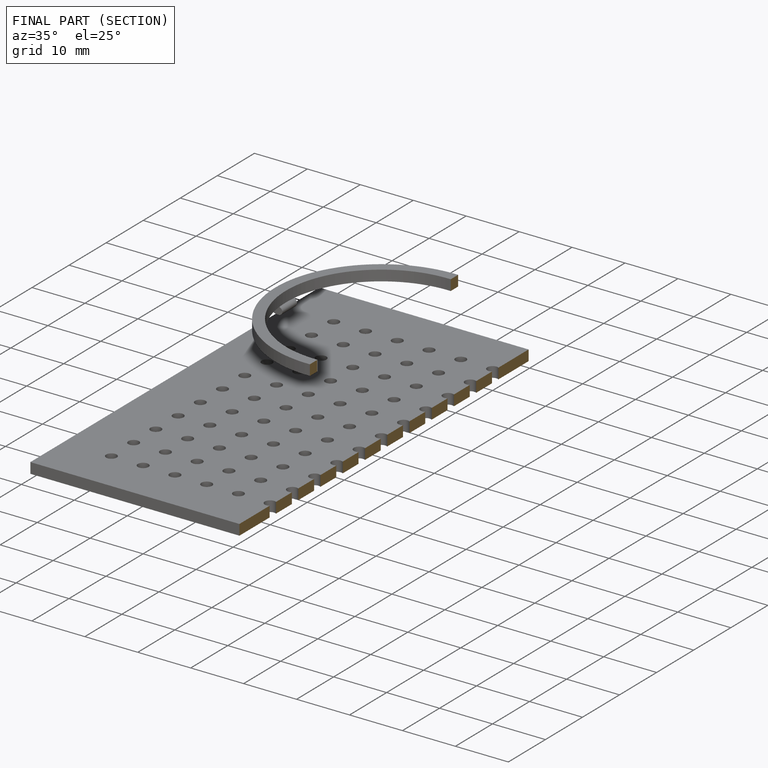
[diagram: finished part — half-section view (interior)]
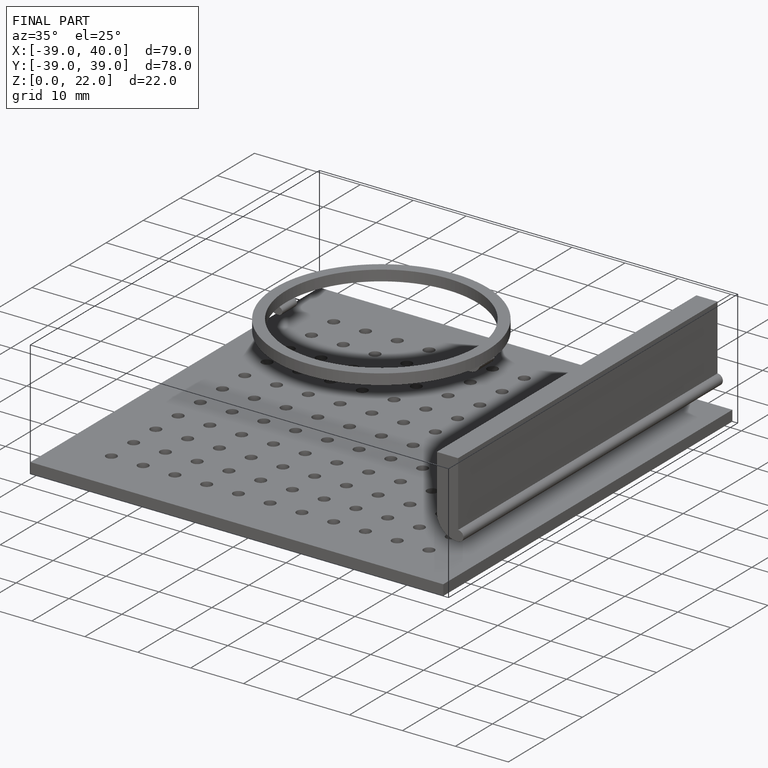
[diagram: finished part — iso view with bounding-box wireframe]
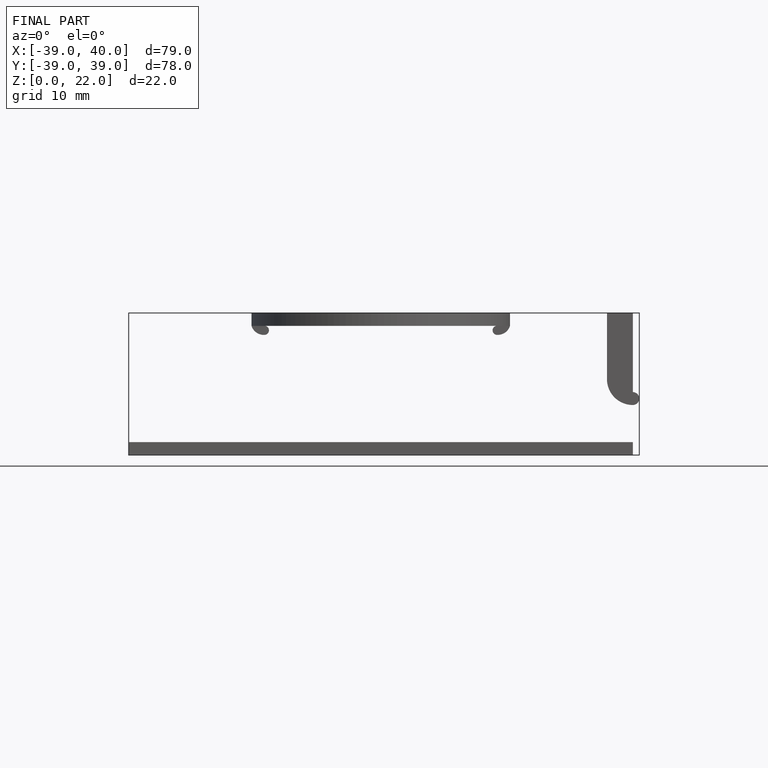
[diagram: finished part — front view with bounding-box wireframe]
